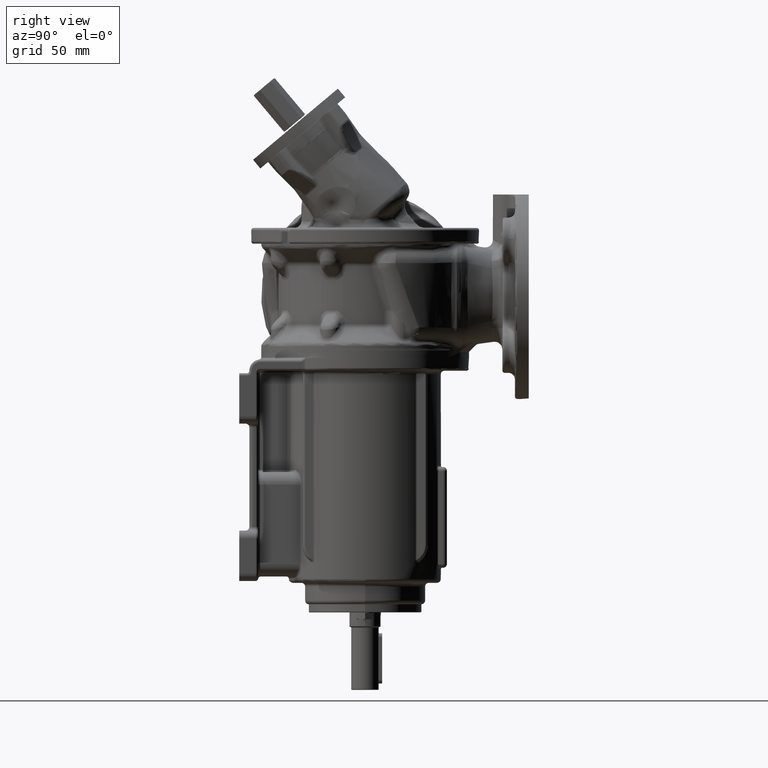
[diagram: clean part render]
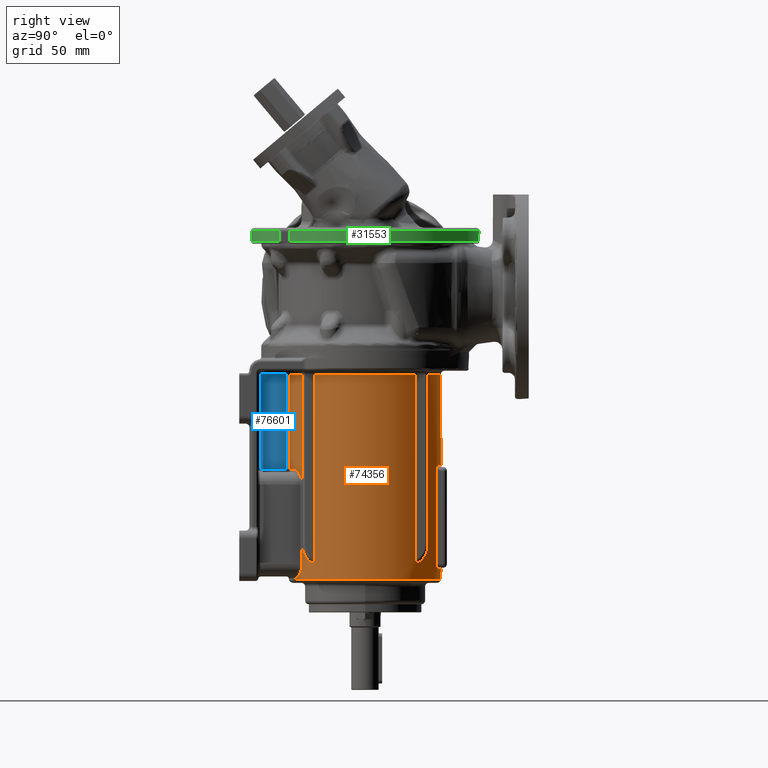
[diagram: same view with three faces highlighted in distinct colors, each labeled with its STEP entity id]
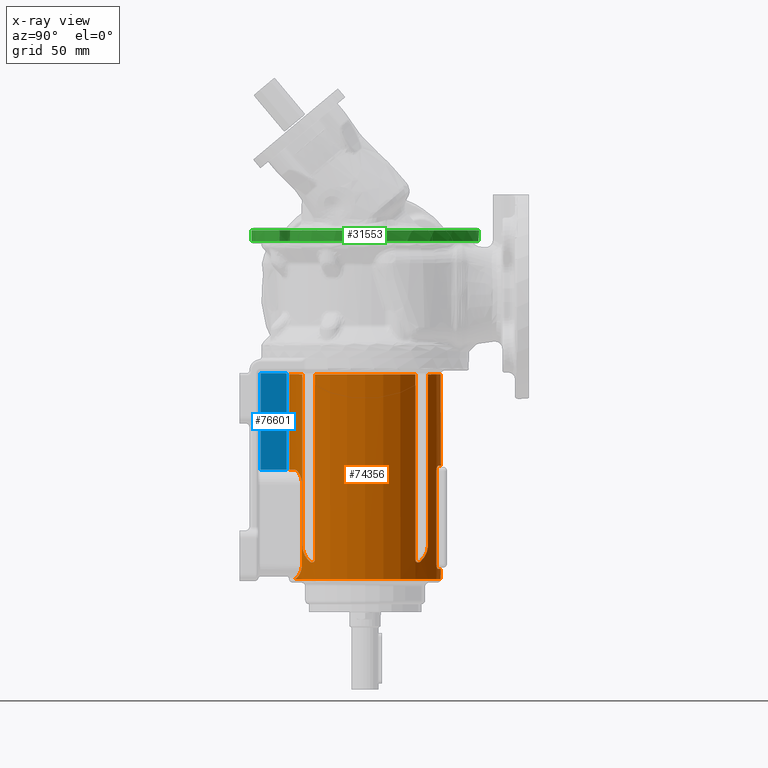
[diagram: x-ray of the same camera — body ghosted, the three highlighted faces saturated]
A machine part, right view with three faces highlighted in distinct colors.
The next image is the same camera in x-ray (body ghosted, the three faces saturated) — at least one of them is partly hidden behind the body in this view.
Their STEP definitions:

[orange] entity #74356 — the highlighted cylindrical surface (partial cylindrical patch) has radius 60.5 mm, axis along (0, 0, 1).
#18372=CARTESIAN_POINT('',(3.427868282184E1,-4.9852E1,-1.299999999441E1));
#18374=CARTESIAN_POINT('',(0.E0,0.E0,-1.3E1));
#18375=DIRECTION('',(0.E0,0.E0,-1.E0));
#18376=DIRECTION('',(5.665897987080E-1,-8.24E-1,0.E0));
#18377=AXIS2_PLACEMENT_3D('',#18374,#18375,#18376);
#18466=CARTESIAN_POINT('',(4.5496E1,-3.987936789870E1,-1.299999999308E1));
#18533=CARTESIAN_POINT('',(0.E0,0.E0,-1.3E1));
#18534=DIRECTION('',(0.E0,0.E0,-1.E0));
#18535=DIRECTION('',(7.52E-1,6.591631057637E-1,0.E0));
#18536=AXIS2_PLACEMENT_3D('',#18533,#18534,#18535);
#18625=CARTESIAN_POINT('',(3.427868282184E1,4.9852E1,-1.299999999326E1));
#18689=CARTESIAN_POINT('',(-3.427868282184E1,4.9852E1,-1.299999999441E1));
#18691=CARTESIAN_POINT('',(0.E0,0.E0,-1.3E1));
#18692=DIRECTION('',(0.E0,0.E0,-1.E0));
#18693=DIRECTION('',(-5.665897987080E-1,8.24E-1,0.E0));
#18694=AXIS2_PLACEMENT_3D('',#18691,#18692,#18693);
#18812=CARTESIAN_POINT('',(-4.5496E1,-3.987936789870E1,-1.299999999424E1));
#18814=CARTESIAN_POINT('',(0.E0,0.E0,-1.3E1));
#18815=DIRECTION('',(0.E0,0.E0,-1.E0));
#18816=DIRECTION('',(-7.52E-1,-6.591631057637E-1,0.E0));
#18817=AXIS2_PLACEMENT_3D('',#18814,#18815,#18816);
#18908=DIRECTION('',(-2.163996911087E-7,-1.896259167386E-7,1.E0));
#18909=VECTOR('',#18908,1.466418532104E2);
#18910=CARTESIAN_POINT('',(-4.549596826675E1,-3.987934009161E1,
-1.596418532046E2));
#18911=LINE('',#18910,#18909);
#18962=CARTESIAN_POINT('',(-4.549596826675E1,-3.987934009161E1,
-1.596418532046E2));
#18963=CARTESIAN_POINT('',(-4.549600003600E1,-3.987928219296E1,
-1.597113380164E2));
#18964=CARTESIAN_POINT('',(-4.549381156651E1,-3.988190461758E1,
-1.598462653171E2));
#18965=CARTESIAN_POINT('',(-4.548261520022E1,-3.989462396014E1,
-1.600358697402E2));
#18966=CARTESIAN_POINT('',(-4.546508229438E1,-3.991461935863E1,
-1.602146673313E2));
#18967=CARTESIAN_POINT('',(-4.544168127532E1,-3.994125763559E1,
-1.603837888715E2));
#18968=CARTESIAN_POINT('',(-4.541281181260E1,-3.997408284020E1,
-1.605444179410E2));
#18969=CARTESIAN_POINT('',(-4.537836977646E1,-4.001318044477E1,
-1.606980502244E2));
#18970=CARTESIAN_POINT('',(-4.533816914688E1,-4.005872969157E1,
-1.608446602199E2));
#18971=CARTESIAN_POINT('',(-4.529254496448E1,-4.011031183538E1,
-1.609839866809E2));
#18972=CARTESIAN_POINT('',(-4.524229025143E1,-4.016699216673E1,
-1.611162957849E2));
#18973=CARTESIAN_POINT('',(-4.518732199036E1,-4.022882565694E1,
-1.612424708144E2));
#18974=CARTESIAN_POINT('',(-4.512720856409E1,-4.029625325108E1,
-1.613630656580E2));
#18975=CARTESIAN_POINT('',(-4.506122434073E1,-4.037003354162E1,
-1.614779405995E2));
#18976=CARTESIAN_POINT('',(-4.498949902850E1,-4.044995831280E1,
-1.615874709459E2));
#18977=CARTESIAN_POINT('',(-4.491191105444E1,-4.053609572601E1,
-1.616918929141E2));
#18978=CARTESIAN_POINT('',(-4.482847879352E1,-4.062835208852E1,
-1.617908412027E2));
#18979=CARTESIAN_POINT('',(-4.473933987740E1,-4.072649847473E1,
-1.618834039821E2));
#18980=CARTESIAN_POINT('',(-4.464457804459E1,-4.083036418853E1,
-1.619688133670E2));
#18981=CARTESIAN_POINT('',(-4.454363700886E1,-4.094047270326E1,
-1.620473061554E2));
#18982=CARTESIAN_POINT('',(-4.443592066697E1,-4.105737351082E1,
-1.621188436883E2));
#18983=CARTESIAN_POINT('',(-4.432097256752E1,-4.118144588714E1,
-1.621831158700E2));
#18984=CARTESIAN_POINT('',(-4.419902769076E1,-4.131231287652E1,
-1.622394359799E2));
#18985=CARTESIAN_POINT('',(-4.407006828185E1,-4.144986783869E1,
-1.622867722110E2));
#18986=CARTESIAN_POINT('',(-4.393401032478E1,-4.159406791222E1,
-1.623242340472E2));
#18987=CARTESIAN_POINT('',(-4.379076890887E1,-4.174486373681E1,
-1.623510930434E2));
#18988=CARTESIAN_POINT('',(-4.364044176566E1,-4.190200793043E1,
-1.623669177274E2));
#18989=CARTESIAN_POINT('',(-4.348344026979E1,-4.206492719089E1,
-1.623708103543E2));
#18990=CARTESIAN_POINT('',(-4.332035232272E1,-4.223287731297E1,
-1.623617149714E2));
#18991=CARTESIAN_POINT('',(-4.315139564367E1,-4.240550806216E1,
-1.623389370513E2));
#18992=CARTESIAN_POINT('',(-4.297635243349E1,-4.258291312762E1,
-1.623019815159E2));
#18993=CARTESIAN_POINT('',(-4.279518962455E1,-4.276498946411E1,
-1.622499273568E2));
#18994=CARTESIAN_POINT('',(-4.260884976616E1,-4.295066250210E1,
-1.621818406853E2));
#18995=CARTESIAN_POINT('',(-4.241852856012E1,-4.313864459843E1,
-1.620973855730E2));
#18996=CARTESIAN_POINT('',(-4.222448451805E1,-4.332860280599E1,
-1.619961474653E2));
#18997=CARTESIAN_POINT('',(-4.202714138557E1,-4.352005101074E1,
-1.618775799078E2));
#18998=CARTESIAN_POINT('',(-4.182562087284E1,-4.371377867978E1,
-1.617395206930E2));
#18999=CARTESIAN_POINT('',(-4.169185780813E1,-4.384113605963E1,
-1.616370196911E2));
#19000=CARTESIAN_POINT('',(-4.162281970866E1,-4.390659021914E1,
-1.615808854211E2));
#19002=CARTESIAN_POINT('',(-4.162281970866E1,-4.390659021914E1,
-1.615808854211E2));
#19003=CARTESIAN_POINT('',(-4.143494182917E1,-4.408469463403E1,
-1.614281665477E2));
#19004=CARTESIAN_POINT('',(-4.105991029438E1,-4.443563379417E1,
-1.611136709313E2));
#19005=CARTESIAN_POINT('',(-4.051292628113E1,-4.493471172367E1,
-1.606274579182E2));
#19006=CARTESIAN_POINT('',(-3.998076119012E1,-4.540870950407E1,
-1.601259042402E2));
#19007=CARTESIAN_POINT('',(-3.946730819866E1,-4.585551630533E1,
-1.596124720675E2));
#19008=CARTESIAN_POINT('',(-3.897493580695E1,-4.627457351263E1,
-1.590898605885E2));
#19009=CARTESIAN_POINT('',(-3.850590950296E1,-4.666542195004E1,
-1.585614986250E2));
#19010=CARTESIAN_POINT('',(-3.806257219603E1,-4.702756992673E1,-1.580306581E2));
#19011=CARTESIAN_POINT('',(-3.764685534554E1,-4.736087004419E1,
-1.575004590851E2));
#19012=CARTESIAN_POINT('',(-3.725868384178E1,-4.766671483871E1,
-1.569723711821E2));
#19013=CARTESIAN_POINT('',(-3.689776736494E1,-4.794651881505E1,
-1.564480429795E2));
#19014=CARTESIAN_POINT('',(-3.656416418188E1,-4.820130277071E1,
-1.559286853994E2));
#19015=CARTESIAN_POINT('',(-3.625756377157E1,-4.843225925357E1,
-1.554153545952E2));
#19016=CARTESIAN_POINT('',(-3.597724136957E1,-4.864077455252E1,
-1.549089514394E2));
#19017=CARTESIAN_POINT('',(-3.572219565096E1,-4.882831954134E1,
-1.544102586042E2));
#19018=CARTESIAN_POINT('',(-3.549179304689E1,-4.899598787315E1,
-1.539199330240E2));
#19019=CARTESIAN_POINT('',(-3.528481105089E1,-4.914520739853E1,
-1.534375365554E2));
#19020=CARTESIAN_POINT('',(-3.509996875295E1,-4.927735173639E1,
-1.529623608720E2));
#19021=CARTESIAN_POINT('',(-3.493605263028E1,-4.939366390630E1,
-1.524936247951E2));
#19022=CARTESIAN_POINT('',(-3.479189717484E1,-4.949528122244E1,
-1.520304042557E2));
#19023=CARTESIAN_POINT('',(-3.466702945002E1,-4.958279575469E1,
-1.515735145285E2));
#19024=CARTESIAN_POINT('',(-3.456106648891E1,-4.965669438568E1,
-1.511243469018E2));
#19025=CARTESIAN_POINT('',(-3.447294147560E1,-4.971789823412E1,
-1.506814267031E2));
#19026=CARTESIAN_POINT('',(-3.440171290214E1,-4.976719888478E1,
-1.502413548060E2));
#19027=CARTESIAN_POINT('',(-3.434665323118E1,-4.980520541631E1,
-1.498025820975E2));
#19028=CARTESIAN_POINT('',(-3.430745657223E1,-4.983220714099E1,
-1.493658658206E2));
#19029=CARTESIAN_POINT('',(-3.428393466393E1,-4.984839003825E1,
-1.489314022489E2));
#19030=CARTESIAN_POINT('',(-3.427868194432E1,-4.985199921209E1,
-1.486435215652E2));
#19031=CARTESIAN_POINT('',(-3.427868282189E1,-4.985199999996E1,
-1.484999999947E2));
#19033=DIRECTION('',(4.065562974384E-13,-2.842695328794E-13,1.E0));
#19034=VECTOR('',#19033,1.355000000014E2);
#19035=CARTESIAN_POINT('',(-3.427868282189E1,-4.985199999996E1,
-1.484999999947E2));
#19036=LINE('',#19035,#19034);
#19037=DIRECTION('',(3.514598471860E-12,-3.103801247876E-13,-1.E0));
#19038=VECTOR('',#19037,7.550000001257E1);
#19039=CARTESIAN_POINT('',(-5.324000000001E0,-6.026528871581E1,
-1.299999999986E1));
#19040=LINE('',#19039,#19038);
#19041=CARTESIAN_POINT('',(0.E0,0.E0,-8.85E1));
#19042=DIRECTION('',(0.E0,0.E0,-1.E0));
#19043=DIRECTION('',(-8.8E-2,-9.961204746415E-1,0.E0));
#19044=AXIS2_PLACEMENT_3D('',#19041,#19042,#19043);
#19046=CARTESIAN_POINT('',(-2.226399999968E1,-5.625446030329E1,-8.85E1));
#19047=CARTESIAN_POINT('',(-2.242715239738E1,-5.618988829589E1,
-8.850000767868E1));
#19048=CARTESIAN_POINT('',(-2.275409742356E1,-5.605885278170E1,
-8.850714208947E1));
#19049=CARTESIAN_POINT('',(-2.324693550426E1,-5.585629055732E1,
-8.853950603546E1));
#19050=CARTESIAN_POINT('',(-2.374037535618E1,-5.564836443838E1,
-8.859375351067E1));
#19051=CARTESIAN_POINT('',(-2.423320204347E1,-5.543553062019E1,
-8.867002629290E1));
#19052=CARTESIAN_POINT('',(-2.472403267663E1,-5.521836672031E1,
-8.876838897780E1));
#19053=CARTESIAN_POINT('',(-2.521152066902E1,-5.499749384296E1,
-8.888882847677E1));
#19054=CARTESIAN_POINT('',(-2.569499577304E1,-5.477327278377E1,
-8.903137771742E1));
#19055=CARTESIAN_POINT('',(-2.617390704622E1,-5.454603213968E1,
-8.919612117252E1));
#19056=CARTESIAN_POINT('',(-2.664711077143E1,-5.431641348399E1,
-8.938293253961E1));
#19057=CARTESIAN_POINT('',(-2.711304560140E1,-5.408531888010E1,
-8.959137487411E1));
#19058=CARTESIAN_POINT('',(-2.757033006756E1,-5.385362616578E1,
-8.982092942587E1));
#19059=CARTESIAN_POINT('',(-2.801771166109E1,-5.362220388035E1,
-9.007108481220E1));
#19060=CARTESIAN_POINT('',(-2.845401671101E1,-5.339193003601E1,
-9.034122246452E1));
#19061=CARTESIAN_POINT('',(-2.887796638423E1,-5.316378698399E1,
-9.063050464907E1));
#19062=CARTESIAN_POINT('',(-2.928834770400E1,-5.293877093637E1,
-9.093790740353E1));
#19063=CARTESIAN_POINT('',(-2.968407633027E1,-5.271785009982E1,
-9.126238175548E1));
#19064=CARTESIAN_POINT('',(-3.006418206592E1,-5.250196377131E1,
-9.160286912803E1));
#19065=CARTESIAN_POINT('',(-3.042782591282E1,-5.229200404588E1,
-9.195821611008E1));
#19066=CARTESIAN_POINT('',(-3.077436448875E1,-5.208876843281E1,
-9.232727311195E1));
#19067=CARTESIAN_POINT('',(-3.110327648276E1,-5.189299117864E1,
-9.270883050345E1));
#19068=CARTESIAN_POINT('',(-3.141384799905E1,-5.170552700994E1,
-9.310142658504E1));
#19069=CARTESIAN_POINT('',(-3.170544359466E1,-5.152719071044E1,
-9.350343248571E1));
#19070=CARTESIAN_POINT('',(-3.197795509963E1,-5.135846920588E1,
-9.391371430655E1));
#19071=CARTESIAN_POINT('',(-3.223144516466E1,-5.119972295448E1,
-9.433130923686E1));
#19072=CARTESIAN_POINT('',(-3.246597427204E1,-5.105128996571E1,
-9.475518592665E1));
#19073=CARTESIAN_POINT('',(-3.268163077320E1,-5.091346592925E1,
-9.518435058252E1));
#19074=CARTESIAN_POINT('',(-3.287855515677E1,-5.078648673170E1,
-9.561789589449E1));
#19075=CARTESIAN_POINT('',(-3.305689622765E1,-5.067055539985E1,
-9.605496645633E1));
#19076=CARTESIAN_POINT('',(-3.321697898067E1,-5.056573124945E1,
-9.649486380832E1));
#19077=CARTESIAN_POINT('',(-3.335918231718E1,-5.047200661448E1,
-9.693708726029E1));
#19078=CARTESIAN_POINT('',(-3.348379551893E1,-5.038940233656E1,
-9.738121978303E1));
#19079=CARTESIAN_POINT('',(-3.359102603776E1,-5.031796532864E1,
-9.782700545872E1));
#19080=CARTESIAN_POINT('',(-3.368114574881E1,-5.025767224492E1,
-9.827379306391E1));
#19081=CARTESIAN_POINT('',(-3.375439760215E1,-5.020849188203E1,
-9.872088933337E1));
#19082=CARTESIAN_POINT('',(-3.381092187325E1,-5.017043617463E1,
-9.916771908570E1));
#19083=CARTESIAN_POINT('',(-3.385090437983E1,-5.014346164768E1,
-9.961367411689E1));
#19084=CARTESIAN_POINT('',(-3.387473032208E1,-5.012736516241E1,
-1.000581408590E2));
#19085=CARTESIAN_POINT('',(-3.387999770741E1,-5.012380446932E1,
-1.003529370737E2));
#19086=CARTESIAN_POINT('',(-3.387999999997E1,-5.012380272887E1,
-1.005000000046E2));
#19088=DIRECTION('',(2.522990635126E-13,-1.712069639750E-13,-1.E0));
#19089=VECTOR('',#19088,6.299999999072E1);
#19090=CARTESIAN_POINT('',(-3.387999999997E1,-5.012380272887E1,
-1.005000000046E2));
#19091=LINE('',#19090,#19089);
#19092=CARTESIAN_POINT('',(-3.387999999995E1,-5.012380272888E1,
-1.634999999953E2));
#19093=CARTESIAN_POINT('',(-3.387999550886E1,-5.012380523609E1,
-1.636496968049E2));
#19094=CARTESIAN_POINT('',(-3.387448398262E1,-5.012753204720E1,
-1.639490881775E2));
#19095=CARTESIAN_POINT('',(-3.384991140769E1,-5.014413214525E1,
-1.643983291555E2));
#19096=CARTESIAN_POINT('',(-3.380909152978E1,-5.017167001508E1,
-1.648472420890E2));
#19097=CARTESIAN_POINT('',(-3.375194200251E1,-5.021014297858E1,
-1.652955141317E2));
#19098=CARTESIAN_POINT('',(-3.367821073008E1,-5.025963946079E1,
-1.657426505732E2));
#19099=CARTESIAN_POINT('',(-3.358759828474E1,-5.032025388040E1,
-1.661884383574E2));
#19100=CARTESIAN_POINT('',(-3.347989825368E1,-5.039199242802E1,
-1.666333966885E2));
#19101=CARTESIAN_POINT('',(-3.335465978593E1,-5.047499635755E1,
-1.670778256923E2));
#19102=CARTESIAN_POINT('',(-3.321169974252E1,-5.056919989785E1,
-1.675206724938E2));
#19103=CARTESIAN_POINT('',(-3.305090992653E1,-5.067446127739E1,
-1.679605897439E2));
#19104=CARTESIAN_POINT('',(-3.287200712650E1,-5.079072612860E1,
-1.683971521459E2));
#19105=CARTESIAN_POINT('',(-3.267450841323E1,-5.091803839855E1,
-1.688304034611E2));
#19106=CARTESIAN_POINT('',(-3.245804000318E1,-5.105633660359E1,
-1.692597774507E2));
#19107=CARTESIAN_POINT('',(-3.222275223675E1,-5.120519561201E1,
-1.696836817924E2));
#19108=CARTESIAN_POINT('',(-3.196885009086E1,-5.136413779772E1,
-1.701006359590E2));
#19109=CARTESIAN_POINT('',(-3.169615099046E1,-5.153290777467E1,
-1.705099587606E2));
#19110=CARTESIAN_POINT('',(-3.140439733953E1,-5.171126781831E1,
-1.709110351910E2));
#19111=CARTESIAN_POINT('',(-3.109378249116E1,-5.189868030208E1,
-1.713026348888E2));
#19112=CARTESIAN_POINT('',(-3.076490912808E1,-5.209435335626E1,
-1.716832134956E2));
#19113=CARTESIAN_POINT('',(-3.041838763936E1,-5.229749471662E1,
-1.720513938365E2));
#19114=CARTESIAN_POINT('',(-3.005479058350E1,-5.250734007951E1,
-1.724058928620E2));
#19115=CARTESIAN_POINT('',(-2.967484103699E1,-5.272304839038E1,
-1.727455034554E2));
#19116=CARTESIAN_POINT('',(-2.927935992376E1,-5.294374139341E1,
-1.730691092091E2));
#19117=CARTESIAN_POINT('',(-2.886926872338E1,-5.316850936338E1,
-1.733757028812E2));
#19118=CARTESIAN_POINT('',(-2.844565884727E1,-5.339638188927E1,
-1.736641993559E2));
#19119=CARTESIAN_POINT('',(-2.800977914393E1,-5.362634616832E1,
-1.739335690336E2));
#19120=CARTESIAN_POINT('',(-2.756287753380E1,-5.385743895569E1,
-1.741830034726E2));
#19121=CARTESIAN_POINT('',(-2.710611536501E1,-5.408879040439E1,
-1.744118993336E2));
#19122=CARTESIAN_POINT('',(-2.664075976389E1,-5.431952648731E1,
-1.746197356517E2));
#19123=CARTESIAN_POINT('',(-2.616821284503E1,-5.454876148686E1,
-1.748059736509E2));
#19124=CARTESIAN_POINT('',(-2.569004862524E1,-5.477559059963E1,
-1.749701908818E2));
#19125=CARTESIAN_POINT('',(-2.520726609865E1,-5.499944156640E1,
-1.751123100481E2));
#19126=CARTESIAN_POINT('',(-2.472043536176E1,-5.521997489367E1,
-1.752323970343E2));
#19127=CARTESIAN_POINT('',(-2.423028257202E1,-5.543680422312E1,
-1.753304721569E2));
#19128=CARTESIAN_POINT('',(-2.373817559899E1,-5.564930034020E1,
-1.754065200317E2));
#19129=CARTESIAN_POINT('',(-2.324545844487E1,-5.585690250883E1,
-1.754606076642E2));
#19130=CARTESIAN_POINT('',(-2.275340154379E1,-5.605913311386E1,
-1.754928770182E2));
#19131=CARTESIAN_POINT('',(-2.242684145505E1,-5.619001120145E1,
-1.754999916056E2));
#19132=CARTESIAN_POINT('',(-2.226393104576E1,-5.625448759320E1,
-1.755000000019E2));
#19134=CARTESIAN_POINT('',(0.E0,0.E0,-1.755E2));
#19135=DIRECTION('',(0.E0,0.E0,-1.E0));
#19136=DIRECTION('',(-3.679999988767E-1,-9.298257905795E-1,0.E0));
#19137=AXIS2_PLACEMENT_3D('',#19134,#19135,#19136);
#19139=CARTESIAN_POINT('',(0.E0,0.E0,-1.755E2));
#19140=DIRECTION('',(0.E0,0.E0,-1.E0));
#19141=DIRECTION('',(-1.E0,0.E0,0.E0));
#19142=AXIS2_PLACEMENT_3D('',#19139,#19140,#19141);
#19144=CARTESIAN_POINT('',(0.E0,0.E0,-1.755E2));
#19145=DIRECTION('',(0.E0,0.E0,-1.E0));
#19146=DIRECTION('',(1.E0,0.E0,0.E0));
#19147=AXIS2_PLACEMENT_3D('',#19144,#19145,#19146);
#19149=CARTESIAN_POINT('',(2.226392916157E1,-5.625448833890E1,
-1.755000000016E2));
#19150=CARTESIAN_POINT('',(2.242708158049E1,-5.618991632320E1,
-1.754999923229E2));
#19151=CARTESIAN_POINT('',(2.275413027036E1,-5.605883978207E1,
-1.754928579106E2));
#19152=CARTESIAN_POINT('',(2.324692670629E1,-5.585629403922E1,
-1.754604939644E2));
#19153=CARTESIAN_POINT('',(2.374037773231E1,-5.564836349748E1,
-1.754062464872E2));
#19154=CARTESIAN_POINT('',(2.423320143603E1,-5.543553085960E1,
-1.753299737028E2));
#19155=CARTESIAN_POINT('',(2.472403287403E1,-5.521836664073E1,
-1.752316110160E2));
#19156=CARTESIAN_POINT('',(2.521152065079E1,-5.499749384846E1,
-1.751111715158E2));
#19157=CARTESIAN_POINT('',(2.569499580966E1,-5.477327276748E1,
-1.749686222747E2));
#19158=CARTESIAN_POINT('',(2.617390706580E1,-5.454603213001E1,
-1.748038788190E2));
#19159=CARTESIAN_POINT('',(2.664711079492E1,-5.431641347254E1,
-1.746170674509E2));
#19160=CARTESIAN_POINT('',(2.711304562343E1,-5.408531886903E1,
-1.744086251153E2));
#19161=CARTESIAN_POINT('',(2.757033008863E1,-5.385362615499E1,
-1.741790705630E2));
#19162=CARTESIAN_POINT('',(2.801771168055E1,-5.362220387017E1,
-1.739289151763E2));
#19163=CARTESIAN_POINT('',(2.845401672919E1,-5.339193002632E1,
-1.736587775236E2));
#19164=CARTESIAN_POINT('',(2.887796640124E1,-5.316378697474E1,
-1.733694953387E2));
#19165=CARTESIAN_POINT('',(2.928834771981E1,-5.293877092762E1,
-1.730620925841E2));
#19166=CARTESIAN_POINT('',(2.968407634481E1,-5.271785009163E1,
-1.727376182320E2));
#19167=CARTESIAN_POINT('',(3.006418207920E1,-5.250196376370E1,
-1.723971308595E2));
#19168=CARTESIAN_POINT('',(3.042782592490E1,-5.229200403885E1,
-1.720417838776E2));
#19169=CARTESIAN_POINT('',(3.077436449967E1,-5.208876842636E1,
-1.716727268759E2));
#19170=CARTESIAN_POINT('',(3.110327649256E1,-5.189299117276E1,
-1.712911694847E2));
#19171=CARTESIAN_POINT('',(3.141384800776E1,-5.170552700465E1,
-1.708985734034E2));
#19172=CARTESIAN_POINT('',(3.170544360233E1,-5.152719070571E1,
-1.704965675032E2));
#19173=CARTESIAN_POINT('',(3.197795510634E1,-5.135846920171E1,
-1.700862856829E2));
#19174=CARTESIAN_POINT('',(3.223144517046E1,-5.119972295082E1,
-1.696686907531E2));
#19175=CARTESIAN_POINT('',(3.246597427701E1,-5.105128996255E1,
-1.692448140639E2));
#19176=CARTESIAN_POINT('',(3.268163077740E1,-5.091346592655E1,
-1.688156494087E2));
#19177=CARTESIAN_POINT('',(3.287855516027E1,-5.078648672943E1,
-1.683821040974E2));
#19178=CARTESIAN_POINT('',(3.305689623052E1,-5.067055539798E1,
-1.679450335362E2));
#19179=CARTESIAN_POINT('',(3.321697898298E1,-5.056573124794E1,
-1.675051361849E2));
#19180=CARTESIAN_POINT('',(3.335918231899E1,-5.047200661328E1,
-1.670629127337E2));
#19181=CARTESIAN_POINT('',(3.348379552030E1,-5.038940233565E1,
-1.666187802117E2));
#19182=CARTESIAN_POINT('',(3.359102603876E1,-5.031796532797E1,
-1.661729945367E2));
#19183=CARTESIAN_POINT('',(3.368114574949E1,-5.025767224446E1,
-1.657262069323E2));
#19184=CARTESIAN_POINT('',(3.375439760258E1,-5.020849188174E1,
-1.652791106636E2));
#19185=CARTESIAN_POINT('',(3.381092187349E1,-5.017043617447E1,
-1.648322809120E2));
#19186=CARTESIAN_POINT('',(3.385090437993E1,-5.014346164762E1,
-1.643863258816E2));
#19187=CARTESIAN_POINT('',(3.387473032210E1,-5.012736516240E1,
-1.639418591403E2));
#19188=CARTESIAN_POINT('',(3.387999770741E1,-5.012380446932E1,
-1.636470629261E2));
#19189=CARTESIAN_POINT('',(3.387999999997E1,-5.012380272887E1,
-1.634999999954E2));
#19191=DIRECTION('',(-2.521862789514E-13,-1.710941794138E-13,1.E0));
#19192=VECTOR('',#19191,6.299999999072E1);
#19193=CARTESIAN_POINT('',(3.387999999997E1,-5.012380272887E1,
-1.634999999954E2));
#19194=LINE('',#19193,#19192);
#19195=CARTESIAN_POINT('',(3.387999999995E1,-5.012380272888E1,
-1.005000000047E2));
#19196=CARTESIAN_POINT('',(3.387999550886E1,-5.012380523609E1,
-1.003503031948E2));
#19197=CARTESIAN_POINT('',(3.387448398260E1,-5.012753204722E1,
-1.000509118216E2));
#19198=CARTESIAN_POINT('',(3.384991140757E1,-5.014413214533E1,
-9.960167084267E1));
#19199=CARTESIAN_POINT('',(3.380909152949E1,-5.017167001527E1,
-9.915275790828E1));
#19200=CARTESIAN_POINT('',(3.375194200200E1,-5.021014297893E1,
-9.870448586471E1));
#19201=CARTESIAN_POINT('',(3.367821072927E1,-5.025963946134E1,
-9.825734942229E1));
#19202=CARTESIAN_POINT('',(3.358759828356E1,-5.032025388119E1,
-9.781156163723E1));
#19203=CARTESIAN_POINT('',(3.347989825205E1,-5.039199242910E1,
-9.736660330525E1));
#19204=CARTESIAN_POINT('',(3.335465978378E1,-5.047499635897E1,
-9.692217430057E1));
#19205=CARTESIAN_POINT('',(3.321169973978E1,-5.056919989966E1,
-9.647932749820E1));
#19206=CARTESIAN_POINT('',(3.305090992311E1,-5.067446127961E1,
-9.603941024726E1));
#19207=CARTESIAN_POINT('',(3.287200712234E1,-5.079072613129E1,
-9.560284784441E1));
#19208=CARTESIAN_POINT('',(3.267450840824E1,-5.091803840175E1,
-9.516959652843E1));
#19209=CARTESIAN_POINT('',(3.245803999727E1,-5.105633660735E1,
-9.474022253813E1));
#19210=CARTESIAN_POINT('',(3.222275222985E1,-5.120519561635E1,
-9.431631819574E1));
#19211=CARTESIAN_POINT('',(3.196885008291E1,-5.136413780267E1,
-9.389936402851E1));
#19212=CARTESIAN_POINT('',(3.169615098137E1,-5.153290778026E1,
-9.349004122635E1));
#19213=CARTESIAN_POINT('',(3.140439732921E1,-5.171126782458E1,
-9.308896479541E1));
#19214=CARTESIAN_POINT('',(3.109378247956E1,-5.189868030903E1,
-9.269736509718E1));
#19215=CARTESIAN_POINT('',(3.076490911515E1,-5.209435336390E1,
-9.231678649001E1));
#19216=CARTESIAN_POINT('',(3.041838762506E1,-5.229749472495E1,
-9.194860614890E1));
#19217=CARTESIAN_POINT('',(3.005479056776E1,-5.250734008852E1,
-9.159410712324E1));
#19218=CARTESIAN_POINT('',(2.967484101976E1,-5.272304840008E1,
-9.125449652983E1));
#19219=CARTESIAN_POINT('',(2.927935990504E1,-5.294374140377E1,
-9.093089077622E1));
#19220=CARTESIAN_POINT('',(2.886926870326E1,-5.316850937431E1,
-9.062429710444E1));
#19221=CARTESIAN_POINT('',(2.844565882576E1,-5.339638190073E1,
-9.033580063008E1));
#19222=CARTESIAN_POINT('',(2.800977912083E1,-5.362634618039E1,
-9.006643095283E1));
#19223=CARTESIAN_POINT('',(2.756287750883E1,-5.385743896846E1,
-8.981699651417E1));
#19224=CARTESIAN_POINT('',(2.710611533903E1,-5.408879041744E1,
-8.958810065401E1));
#19225=CARTESIAN_POINT('',(2.664075973653E1,-5.431952650065E1,
-8.938026433717E1));
#19226=CARTESIAN_POINT('',(2.616821282125E1,-5.454876149854E1,
-8.919402633919E1));
#19227=CARTESIAN_POINT('',(2.569004858418E1,-5.477559061803E1,
-8.902980910886E1));
#19228=CARTESIAN_POINT('',(2.520726611054E1,-5.499944156372E1,
-8.888768994310E1));
#19229=CARTESIAN_POINT('',(2.472043516399E1,-5.521997497364E1,
-8.876760295836E1));
#19230=CARTESIAN_POINT('',(2.423028315860E1,-5.543680399212E1,
-8.866952783813E1));
#19231=CARTESIAN_POINT('',(2.373817328341E1,-5.564930125720E1,
-8.859347996582E1));
#19232=CARTESIAN_POINT('',(2.324546700709E1,-5.585689912023E1,
-8.853939233569E1));
#19233=CARTESIAN_POINT('',(2.275336957719E1,-5.605914576511E1,
-8.850712298197E1));
#19234=CARTESIAN_POINT('',(2.242691038408E1,-5.618998392128E1,
-8.850000839636E1));
#19235=CARTESIAN_POINT('',(2.226399999979E1,-5.625446030325E1,-8.85E1));
#19237=CARTESIAN_POINT('',(0.E0,0.E0,-8.85E1));
#19238=DIRECTION('',(0.E0,0.E0,-1.E0));
#19239=DIRECTION('',(3.68E-1,-9.298257901349E-1,0.E0));
#19240=AXIS2_PLACEMENT_3D('',#19237,#19238,#19239);
#19242=DIRECTION('',(3.612062818920E-12,3.188501706395E-13,1.E0));
#19243=VECTOR('',#19242,7.550000001338E1);
#19244=CARTESIAN_POINT('',(5.323999999736E0,-6.026528871583E1,
-8.850000001243E1));
#19245=LINE('',#19244,#19243);
#19246=DIRECTION('',(7.750946256504E-13,5.333527797503E-13,-1.E0));
#19247=VECTOR('',#19246,1.354999999962E2);
#19248=CARTESIAN_POINT('',(3.427868282184E1,-4.9852E1,-1.299999999441E1));
#19249=LINE('',#19248,#19247);
#19250=CARTESIAN_POINT('',(3.427868282194E1,-4.985199999993E1,
-1.484999999906E2));
#19251=CARTESIAN_POINT('',(3.427867806765E1,-4.985200089860E1,
-1.486426630992E2));
#19252=CARTESIAN_POINT('',(3.428389961244E1,-4.984841459374E1,
-1.489292915959E2));
#19253=CARTESIAN_POINT('',(3.430742301134E1,-4.983223013578E1,
-1.493635012278E2));
#19254=CARTESIAN_POINT('',(3.434670651900E1,-4.980516875687E1,
-1.498008974402E2));
#19255=CARTESIAN_POINT('',(3.440190279202E1,-4.976706769752E1,
-1.502407996875E2));
#19256=CARTESIAN_POINT('',(3.447317419534E1,-4.971773680480E1,
-1.506820980267E2));
#19257=CARTESIAN_POINT('',(3.456102764570E1,-4.965672102039E1,
-1.511246250007E2));
#19258=CARTESIAN_POINT('',(3.466642193469E1,-4.958321968927E1,
-1.515715724806E2));
#19259=CARTESIAN_POINT('',(3.479055259682E1,-4.949622546740E1,
-1.520259224434E2));
#19260=CARTESIAN_POINT('',(3.493434945333E1,-4.939486845888E1,
-1.524881726664E2));
#19261=CARTESIAN_POINT('',(3.509851865137E1,-4.927838531342E1,
-1.529579328997E2));
#19262=CARTESIAN_POINT('',(3.528373195412E1,-4.914598267755E1,
-1.534346857189E2));
#19263=CARTESIAN_POINT('',(3.549063001168E1,-4.899682905905E1,
-1.539176732857E2));
#19264=CARTESIAN_POINT('',(3.571991983993E1,-4.882998051330E1,
-1.544063166114E2));
#19265=CARTESIAN_POINT('',(3.597363043724E1,-4.864344322707E1,
-1.549028544057E2));
#19266=CARTESIAN_POINT('',(3.625430617651E1,-4.843470144380E1,
-1.554097273706E2));
#19267=CARTESIAN_POINT('',(3.656240422782E1,-4.820264278843E1,
-1.559254994998E2));
#19268=CARTESIAN_POINT('',(3.689710038701E1,-4.794703521549E1,
-1.564472917038E2));
#19269=CARTESIAN_POINT('',(3.725891816088E1,-4.766653703911E1,
-1.569734752687E2));
#19270=CARTESIAN_POINT('',(3.764907465891E1,-4.735911840532E1,
-1.575038506834E2));
#19271=CARTESIAN_POINT('',(3.806802017233E1,-4.702317785014E1,
-1.580373171184E2));
#19272=CARTESIAN_POINT('',(3.851543918278E1,-4.665758563266E1,
-1.585725416456E2));
#19273=CARTESIAN_POINT('',(3.899018615362E1,-4.626175729535E1,
-1.591069646414E2));
#19274=CARTESIAN_POINT('',(3.948675209723E1,-4.583879553402E1,
-1.596328135069E2));
#19275=CARTESIAN_POINT('',(4.000082497255E1,-4.539101483222E1,
-1.601454877406E2));
#19276=CARTESIAN_POINT('',(4.052963962521E1,-4.491965180552E1,
-1.606425604857E2));
#19277=CARTESIAN_POINT('',(4.107632841148E1,-4.442035126716E1,
-1.611282662549E2));
#19278=CARTESIAN_POINT('',(4.143849862862E1,-4.408139001708E1,
-1.614298294660E2));
#19279=CARTESIAN_POINT('',(4.162886594296E1,-4.390084018257E1,
-1.615846396089E2));
#19281=CARTESIAN_POINT('',(4.162886594296E1,-4.390084018257E1,
-1.615846396089E2));
#19282=CARTESIAN_POINT('',(4.167333317572E1,-4.385867279910E1,
-1.616207761792E2));
#19283=CARTESIAN_POINT('',(4.177541526079E1,-4.376162359351E1,
-1.617015356639E2));
#19284=CARTESIAN_POINT('',(4.190585186843E1,-4.363667518982E1,
-1.617947405540E2));
#19285=CARTESIAN_POINT('',(4.203609788476E1,-4.351123315427E1,
-1.618816830424E2));
#19286=CARTESIAN_POINT('',(4.216269405559E1,-4.338856317450E1,
-1.619591803160E2));
#19287=CARTESIAN_POINT('',(4.228909021624E1,-4.326538337892E1,
-1.620301196072E2));
#19288=CARTESIAN_POINT('',(4.241715939640E1,-4.313983675121E1,
-1.620953320448E2));
#19289=CARTESIAN_POINT('',(4.254706049428E1,-4.301172905412E1,
-1.621546934012E2));
#19290=CARTESIAN_POINT('',(4.267857020894E1,-4.288124941361E1,
-1.622078143519E2));
#19291=CARTESIAN_POINT('',(4.281674945150E1,-4.274329859785E1,
-1.622559475595E2));
#19292=CARTESIAN_POINT('',(4.296664881026E1,-4.259265180332E1,
-1.622991397987E2));
#19293=CARTESIAN_POINT('',(4.313323609204E1,-4.242397919329E1,
-1.623356622233E2));
#19294=CARTESIAN_POINT('',(4.330639699348E1,-4.224720386255E1,
-1.623604077184E2));
#19295=CARTESIAN_POINT('',(4.347439881133E1,-4.207427857563E1,
-1.623707292414E2));
#19296=CARTESIAN_POINT('',(4.363196954474E1,-4.191082842627E1,
-1.623675158490E2));
#19297=CARTESIAN_POINT('',(4.378193369430E1,-4.175412985967E1,
-1.623523028170E2));
#19298=CARTESIAN_POINT('',(4.392555378384E1,-4.160299994527E1,
-1.623260693082E2));
#19299=CARTESIAN_POINT('',(4.406245583543E1,-4.145796208422E1,
-1.622891898574E2));
#19300=CARTESIAN_POINT('',(4.419233885600E1,-4.131946976417E1,
-1.622422762896E2));
#19301=CARTESIAN_POINT('',(4.431505797937E1,-4.118781189139E1,
-1.621861841210E2));
#19302=CARTESIAN_POINT('',(4.443068332864E1,-4.106304237963E1,
-1.621219690274E2));
#19303=CARTESIAN_POINT('',(4.453905716680E1,-4.094545619700E1,
-1.620505018143E2));
#19304=CARTESIAN_POINT('',(4.464058105960E1,-4.083473506931E1,
-1.619721041282E2));
#19305=CARTESIAN_POINT('',(4.473586581046E1,-4.073031533695E1,
-1.618868075477E2));
#19306=CARTESIAN_POINT('',(4.482547365243E1,-4.063166831203E1,
-1.617943475239E2));
#19307=CARTESIAN_POINT('',(4.490928533763E1,-4.053900518464E1,
-1.616952850058E2));
#19308=CARTESIAN_POINT('',(4.498716487727E1,-4.045255458213E1,
-1.615907541089E2));
#19309=CARTESIAN_POINT('',(4.505908970713E1,-4.037241634959E1,
-1.614812678911E2));
#19310=CARTESIAN_POINT('',(4.512529896349E1,-4.029839197658E1,
-1.613666228279E2));
#19311=CARTESIAN_POINT('',(4.518564945150E1,-4.023070446036E1,
-1.612462974777E2));
#19312=CARTESIAN_POINT('',(4.524074265220E1,-4.016873535557E1,
-1.611202105260E2));
#19313=CARTESIAN_POINT('',(4.529114312037E1,-4.011189489900E1,
-1.609878763860E2));
#19314=CARTESIAN_POINT('',(4.533699786715E1,-4.006005556484E1,
-1.608483116158E2));
#19315=CARTESIAN_POINT('',(4.537758322059E1,-4.001407271059E1,
-1.607013461501E2));
#19316=CARTESIAN_POINT('',(4.541228162677E1,-3.997468522191E1,
-1.605473725720E2));
#19317=CARTESIAN_POINT('',(4.544127791384E1,-3.994171671252E1,
-1.603867036924E2));
#19318=CARTESIAN_POINT('',(4.546475966712E1,-3.991498640590E1,
-1.602175843060E2));
#19319=CARTESIAN_POINT('',(4.548240005734E1,-3.989487104735E1,
-1.600385115830E2));
#19320=CARTESIAN_POINT('',(4.549369331497E1,-3.988203287666E1,
-1.598481071603E2));
#19321=CARTESIAN_POINT('',(4.549600334216E1,-3.987929274989E1,
-1.597120388656E2));
#19322=CARTESIAN_POINT('',(4.549597449945E1,-3.987934555183E1,
-1.596418532139E2));
#19324=DIRECTION('',(-1.884401481157E-7,-1.651321333076E-7,-1.E0));
#19325=VECTOR('',#19324,1.466418532135E2);
#19326=CARTESIAN_POINT('',(4.5496E1,3.987936789870E1,-1.299999999424E1));
#19327=LINE('',#19326,#19325);
#19328=CARTESIAN_POINT('',(4.549597236679E1,3.987934368342E1,
-1.596418532077E2));
#19329=CARTESIAN_POINT('',(4.549600488448E1,3.987928402365E1,
-1.597110954625E2));
#19330=CARTESIAN_POINT('',(4.549380593636E1,3.988190761590E1,
-1.598456353809E2));
#19331=CARTESIAN_POINT('',(4.548270012438E1,3.989452803357E1,
-1.600350050612E2));
#19332=CARTESIAN_POINT('',(4.546521234155E1,3.991447097245E1,
-1.602137544494E2));
#19333=CARTESIAN_POINT('',(4.544181824696E1,3.994110186832E1,
-1.603829842388E2));
#19334=CARTESIAN_POINT('',(4.541294132741E1,3.997393568993E1,
-1.605437570419E2));
#19335=CARTESIAN_POINT('',(4.537850959655E1,4.001302185667E1,
-1.606974590503E2));
#19336=CARTESIAN_POINT('',(4.533835580823E1,4.005851839570E1,
-1.608440950618E2));
#19337=CARTESIAN_POINT('',(4.529274875062E1,4.011008171830E1,
-1.609834402409E2));
#19338=CARTESIAN_POINT('',(4.524248447751E1,4.016677341706E1,
-1.611158045909E2));
#19339=CARTESIAN_POINT('',(4.518749468814E1,4.022863169229E1,
-1.612420545423E2));
#19340=CARTESIAN_POINT('',(4.512737138434E1,4.029607091276E1,
-1.613627495391E2));
#19341=CARTESIAN_POINT('',(4.506138797702E1,4.036985089180E1,
-1.614777139368E2));
#19342=CARTESIAN_POINT('',(4.498966461342E1,4.044977412316E1,
-1.615872745959E2));
#19343=CARTESIAN_POINT('',(4.491211172123E1,4.053587332465E1,
-1.616916651977E2));
#19344=CARTESIAN_POINT('',(4.482873172697E1,4.062807292936E1,
-1.617905626544E2));
#19345=CARTESIAN_POINT('',(4.473961674811E1,4.072619434624E1,
-1.618831260083E2));
#19346=CARTESIAN_POINT('',(4.464479853025E1,4.083012325688E1,
-1.619686143527E2));
#19347=CARTESIAN_POINT('',(4.454375807094E1,4.094034118250E1,
-1.620472061292E2));
#19348=CARTESIAN_POINT('',(4.443595203857E1,4.105733967539E1,
-1.621188165412E2));
#19349=CARTESIAN_POINT('',(4.432097831059E1,4.118143971244E1,
-1.621831187597E2));
#19350=CARTESIAN_POINT('',(4.419904074097E1,4.131229888263E1,
-1.622394360011E2));
#19351=CARTESIAN_POINT('',(4.407009867033E1,4.144983548929E1,
-1.622867406978E2));
#19352=CARTESIAN_POINT('',(4.393405176648E1,4.159402413925E1,
-1.623241839606E2));
#19353=CARTESIAN_POINT('',(4.379078148683E1,4.174485071385E1,
-1.623510655041E2));
#19354=CARTESIAN_POINT('',(4.364034266122E1,4.190211150598E1,
-1.623669575393E2));
#19355=CARTESIAN_POINT('',(4.348321961347E1,4.206515545511E1,
-1.623708140432E2));
#19356=CARTESIAN_POINT('',(4.332015943129E1,4.223307485408E1,
-1.623616633933E2));
#19357=CARTESIAN_POINT('',(4.315137995480E1,4.240552345108E1,
-1.623388930153E2));
#19358=CARTESIAN_POINT('',(4.297651828652E1,4.258274540026E1,
-1.623020525230E2));
#19359=CARTESIAN_POINT('',(4.279541109920E1,4.276476778979E1,
-1.622500111011E2));
#19360=CARTESIAN_POINT('',(4.260902255335E1,4.295049155922E1,
-1.621818914296E2));
#19361=CARTESIAN_POINT('',(4.241851089571E1,4.313866222628E1,
-1.620973515244E2));
#19362=CARTESIAN_POINT('',(4.222444863858E1,4.332863809473E1,
-1.619961761770E2));
#19363=CARTESIAN_POINT('',(4.202707533174E1,4.352011366917E1,
-1.618774381257E2));
#19364=CARTESIAN_POINT('',(4.182729470853E1,4.371216616775E1,
-1.617408672182E2));
#19365=CARTESIAN_POINT('',(4.169183228599E1,4.384118631913E1,
-1.616366146948E2));
#19366=CARTESIAN_POINT('',(4.162441805305E1,4.390510001769E1,
-1.615818223518E2));
#19368=CARTESIAN_POINT('',(4.162441805305E1,4.390510001769E1,
-1.615818223518E2));
#19369=CARTESIAN_POINT('',(4.143453511705E1,4.408512052217E1,
-1.614274812178E2));
#19370=CARTESIAN_POINT('',(4.106026133388E1,4.443530013047E1,
-1.611140784416E2));
#19371=CARTESIAN_POINT('',(4.050971327701E1,4.493763842614E1,
-1.606245814676E2));
#19372=CARTESIAN_POINT('',(3.997549845489E1,4.541335344323E1,
-1.601206700143E2));
#19373=CARTESIAN_POINT('',(3.945961851166E1,4.586214956403E1,
-1.596044446564E2));
#19374=CARTESIAN_POINT('',(3.896520797480E1,4.628277329634E1,
-1.590792980128E2));
#19375=CARTESIAN_POINT('',(3.849511897185E1,4.667432740283E1,
-1.585489441274E2));
#19376=CARTESIAN_POINT('',(3.805099514043E1,4.703694209215E1,
-1.580161353866E2));
#19377=CARTESIAN_POINT('',(3.763413781800E1,4.737098125305E1,
-1.574835928751E2));
#19378=CARTESIAN_POINT('',(3.724510373286E1,4.767732804887E1,
-1.569533788198E2));
#19379=CARTESIAN_POINT('',(3.688421513314E1,4.795694320950E1,
-1.564275741254E2));
#19380=CARTESIAN_POINT('',(3.655122256814E1,4.821111416902E1,
-1.559074493357E2));
#19381=CARTESIAN_POINT('',(3.624557455086E1,4.844122866066E1,
-1.553943901935E2));
#19382=CARTESIAN_POINT('',(3.596654367312E1,4.864868102310E1,
-1.548889427163E2));
#19383=CARTESIAN_POINT('',(3.571297928445E1,4.883505737970E1,
-1.543912877417E2));
#19384=CARTESIAN_POINT('',(3.548364658710E1,4.900188584046E1,
-1.539014950360E2));
#19385=CARTESIAN_POINT('',(3.527758104652E1,4.915039562326E1,
-1.534195451219E2));
#19386=CARTESIAN_POINT('',(3.509369030345E1,4.928182147917E1,
-1.529451909148E2));
#19387=CARTESIAN_POINT('',(3.493080769532E1,4.939737144014E1,
-1.524778376011E2));
#19388=CARTESIAN_POINT('',(3.478790552375E1,4.949808500992E1,
-1.520170652344E2));
#19389=CARTESIAN_POINT('',(3.466439013072E1,4.958463955549E1,
-1.515635725006E2));
#19390=CARTESIAN_POINT('',(3.455948039676E1,4.965779748101E1,
-1.511173947064E2));
#19391=CARTESIAN_POINT('',(3.447197963398E1,4.971856478599E1,
-1.506758105961E2));
#19392=CARTESIAN_POINT('',(3.440110489341E1,4.976761897812E1,
-1.502358884290E2));
#19393=CARTESIAN_POINT('',(3.434632094356E1,4.980543447713E1,
-1.497979501494E2));
#19394=CARTESIAN_POINT('',(3.430731300849E1,4.983230586459E1,
-1.493624077051E2));
#19395=CARTESIAN_POINT('',(3.428390341153E1,4.984841178723E1,
-1.489294986294E2));
#19396=CARTESIAN_POINT('',(3.427867814269E1,4.985200125518E1,
-1.486428510611E2));
#19397=CARTESIAN_POINT('',(3.427868282190E1,4.985199999996E1,
-1.484999999944E2));
#19399=DIRECTION('',(-4.822776044821E-13,3.358690939119E-13,1.E0));
#19400=VECTOR('',#19399,1.355000000011E2);
#19401=CARTESIAN_POINT('',(3.427868282190E1,4.985199999996E1,
-1.484999999944E2));
#19402=LINE('',#19401,#19400);
#19403=DIRECTION('',(-5.890425498811E-13,-4.063989817127E-13,-1.E0));
#19404=VECTOR('',#19403,1.354999999984E2);
#19405=CARTESIAN_POINT('',(-3.427868282184E1,4.9852E1,-1.299999999441E1));
#19406=LINE('',#19405,#19404);
#19407=CARTESIAN_POINT('',(-3.427868282192E1,4.985199999995E1,
-1.484999999928E2));
#19408=CARTESIAN_POINT('',(-3.427867937172E1,4.985200082629E1,
-1.486432072949E2));
#19409=CARTESIAN_POINT('',(-3.428391405416E1,4.984840427333E1,
-1.489302603008E2));
#19410=CARTESIAN_POINT('',(-3.430726225267E1,4.983234082889E1,
-1.493626232278E2));
#19411=CARTESIAN_POINT('',(-3.434611760232E1,4.980557460072E1,
-1.497971648405E2));
#19412=CARTESIAN_POINT('',(-3.440070831330E1,4.976789300577E1,
-1.502341147612E2));
#19413=CARTESIAN_POINT('',(-3.447151447032E1,4.971888733287E1,
-1.506735084821E2));
#19414=CARTESIAN_POINT('',(-3.455916279846E1,4.965801870344E1,
-1.511157517898E2));
#19415=CARTESIAN_POINT('',(-3.466416356845E1,4.958479782296E1,
-1.515624778259E2));
#19416=CARTESIAN_POINT('',(-3.478729802043E1,4.949851117017E1,
-1.520148953035E2));
#19417=CARTESIAN_POINT('',(-3.492954299544E1,4.939826480436E1,
-1.524740281386E2));
#19418=CARTESIAN_POINT('',(-3.509197902998E1,4.928303945475E1,
-1.529404892295E2));
#19419=CARTESIAN_POINT('',(-3.527563483910E1,4.915179209787E1,
-1.534146584664E2));
#19420=CARTESIAN_POINT('',(-3.548152459851E1,4.900342183445E1,
-1.538966962380E2));
#19421=CARTESIAN_POINT('',(-3.571063846354E1,4.883676881847E1,
-1.543866038446E2));
#19422=CARTESIAN_POINT('',(-3.596424660174E1,4.865037958897E1,
-1.548845648015E2));
#19423=CARTESIAN_POINT('',(-3.624343482252E1,4.844282991646E1,
-1.553905765770E2));
#19424=CARTESIAN_POINT('',(-3.654914260477E1,4.821269124001E1,
-1.559041613953E2));
#19425=CARTESIAN_POINT('',(-3.688224229393E1,4.795846083955E1,
-1.564245471497E2));
#19426=CARTESIAN_POINT('',(-3.724320183320E1,4.767881385118E1,
-1.569507461533E2));
#19427=CARTESIAN_POINT('',(-3.763229984585E1,4.737244196400E1,
-1.574811423841E2));
#19428=CARTESIAN_POINT('',(-3.804934254141E1,4.703827965631E1,
-1.580141203721E2));
#19429=CARTESIAN_POINT('',(-3.849358142046E1,4.667559613331E1,
-1.585471379848E2));
#19430=CARTESIAN_POINT('',(-3.896380548863E1,4.628395435E1,-1.590777833744E2));
#19431=CARTESIAN_POINT('',(-3.945833818882E1,4.586325321497E1,
-1.596031147054E2));
#19432=CARTESIAN_POINT('',(-3.997481521715E1,4.541395970725E1,
-1.601200292716E2));
#19433=CARTESIAN_POINT('',(-4.050954955191E1,4.493778714619E1,
-1.606244300161E2));
#19434=CARTESIAN_POINT('',(-4.106016977139E1,4.443538801855E1,
-1.611139913482E2));
#19435=CARTESIAN_POINT('',(-4.143458451601E1,4.408506896711E1,
-1.614275497503E2));
#19436=CARTESIAN_POINT('',(-4.162427692213E1,4.390523067021E1,
-1.615817359118E2));
#19438=CARTESIAN_POINT('',(-4.162427692213E1,4.390523067021E1,
-1.615817359118E2));
#19439=CARTESIAN_POINT('',(-4.169186815132E1,4.384114200962E1,
-1.616366947465E2));
#19440=CARTESIAN_POINT('',(-4.182721368303E1,4.371224826407E1,
-1.617408414623E2));
#19441=CARTESIAN_POINT('',(-4.202703026212E1,4.352015579987E1,
-1.618774217480E2));
#19442=CARTESIAN_POINT('',(-4.222421220044E1,4.332886813521E1,
-1.619960071629E2));
#19443=CARTESIAN_POINT('',(-4.241807513082E1,4.313909013171E1,
-1.620971626652E2));
#19444=CARTESIAN_POINT('',(-4.260847025130E1,4.295103935478E1,
-1.621816934931E2));
#19445=CARTESIAN_POINT('',(-4.279489279962E1,4.276528670690E1,
-1.622498304315E2));
#19446=CARTESIAN_POINT('',(-4.297613473644E1,4.258313300214E1,
-1.623019258235E2));
#19447=CARTESIAN_POINT('',(-4.315120838139E1,4.240569865018E1,
-1.623389091372E2));
#19448=CARTESIAN_POINT('',(-4.332017389660E1,4.223306034706E1,
-1.623617000698E2));
#19449=CARTESIAN_POINT('',(-4.348326656946E1,4.206510675583E1,
-1.623708056189E2));
#19450=CARTESIAN_POINT('',(-4.364027235527E1,4.190218438315E1,
-1.623669249719E2));
#19451=CARTESIAN_POINT('',(-4.379061001169E1,4.174503045769E1,
-1.623511208874E2));
#19452=CARTESIAN_POINT('',(-4.393387075890E1,4.159421537824E1,
-1.623242709891E2));
#19453=CARTESIAN_POINT('',(-4.406994651603E1,4.144999732485E1,
-1.622868118723E2));
#19454=CARTESIAN_POINT('',(-4.419890774690E1,4.131244118765E1,
-1.622394819195E2));
#19455=CARTESIAN_POINT('',(-4.432084502267E1,4.118158314382E1,
-1.621831798145E2));
#19456=CARTESIAN_POINT('',(-4.443580136170E1,4.105750268940E1,
-1.621189208164E2));
#19457=CARTESIAN_POINT('',(-4.454356521002E1,4.094055092729E1,
-1.620473637403E2));
#19458=CARTESIAN_POINT('',(-4.464455853680E1,4.083038558978E1,
-1.619688329523E2));
#19459=CARTESIAN_POINT('',(-4.473933734699E1,4.072650123084E1,
-1.618834032295E2));
#19460=CARTESIAN_POINT('',(-4.482843718762E1,4.062839791360E1,
-1.617908793050E2));
#19461=CARTESIAN_POINT('',(-4.491182478218E1,4.053619126785E1,
-1.616919994064E2));
#19462=CARTESIAN_POINT('',(-4.498940583613E1,4.045006198486E1,
-1.615876100593E2));
#19463=CARTESIAN_POINT('',(-4.506116148731E1,4.037010374821E1,
-1.614780530358E2));
#19464=CARTESIAN_POINT('',(-4.512718425875E1,4.029628051352E1,
-1.613631144353E2));
#19465=CARTESIAN_POINT('',(-4.518732694789E1,4.022882010579E1,
-1.612424479536E2));
#19466=CARTESIAN_POINT('',(-4.524229708241E1,4.016698446286E1,
-1.611162527241E2));
#19467=CARTESIAN_POINT('',(-4.529253401821E1,4.011032417196E1,
-1.609839835313E2));
#19468=CARTESIAN_POINT('',(-4.533813245618E1,4.005877120557E1,
-1.608447563570E2));
#19469=CARTESIAN_POINT('',(-4.537833485170E1,4.001322006368E1,
-1.606982097484E2));
#19470=CARTESIAN_POINT('',(-4.541279899738E1,3.997409741470E1,
-1.605445231008E2));
#19471=CARTESIAN_POINT('',(-4.544168906117E1,3.994124878109E1,
-1.603837767503E2));
#19472=CARTESIAN_POINT('',(-4.546509593680E1,3.991460383039E1,
-1.602145532187E2));
#19473=CARTESIAN_POINT('',(-4.548262566523E1,3.989461198479E1,
-1.600356936127E2));
#19474=CARTESIAN_POINT('',(-4.549381681174E1,3.988189879435E1,
-1.598461083294E2));
#19475=CARTESIAN_POINT('',(-4.549599927505E1,3.987928271406E1,
-1.597112737973E2));
#19476=CARTESIAN_POINT('',(-4.549596792652E1,3.987933979356E1,
-1.596418532048E2));
#19478=DIRECTION('',(0.E0,0.E0,1.E0));
#19479=VECTOR('',#19478,7.4E1);
#19480=CARTESIAN_POINT('',(2.1296E1,5.6628E1,-1.635E2));
#19481=LINE('',#19480,#19479);
#19482=DIRECTION('',(0.E0,0.E0,-1.E0));
#19483=VECTOR('',#19482,7.4E1);
#19484=CARTESIAN_POINT('',(-2.1296E1,5.6628E1,-8.95E1));
#19485=LINE('',#19484,#19483);
#19486=DIRECTION('',(2.187198329241E-7,-1.916583669542E-7,-1.E0));
#19487=VECTOR('',#19486,1.466418532117E2);
#19488=CARTESIAN_POINT('',(-4.5496E1,3.987936789870E1,-1.299999999308E1));
#19489=LINE('',#19488,#19487);
#19767=CARTESIAN_POINT('',(0.E0,0.E0,-1.3E1));
#19768=DIRECTION('',(0.E0,0.E0,-1.E0));
#19769=DIRECTION('',(-8.8E-2,-9.961204746415E-1,0.E0));
#19770=AXIS2_PLACEMENT_3D('',#19767,#19768,#19769);
#19772=CARTESIAN_POINT('',(-3.427868282184E1,-4.9852E1,-1.299999999326E1));
#21464=DIRECTION('',(-1.738968165751E-7,1.523908204710E-7,-1.E0));
#21465=VECTOR('',#21464,1.466418532209E2);
#21466=CARTESIAN_POINT('',(4.5496E1,-3.987936789870E1,-1.299999999308E1));
#21467=LINE('',#21466,#21465);
#21723=CARTESIAN_POINT('',(2.1296E1,5.6628E1,-1.635E2));
#21746=CARTESIAN_POINT('',(2.1296E1,5.6628E1,-8.95E1));
#21748=CARTESIAN_POINT('',(1.672377468425E1,5.814262945743E1,
-1.675000029921E2));
#21749=CARTESIAN_POINT('',(1.685631744268E1,5.810450586802E1,
-1.675000012646E2));
#21750=CARTESIAN_POINT('',(1.710674308148E1,5.803148742297E1,
-1.674959695019E2));
#21751=CARTESIAN_POINT('',(1.743183916617E1,5.793457041157E1,
-1.674758079518E2));
#21752=CARTESIAN_POINT('',(1.771985438022E1,5.784707556942E1,
-1.674431484597E2));
#21753=CARTESIAN_POINT('',(1.798364906060E1,5.776557859096E1,
-1.673989403274E2));
#21754=CARTESIAN_POINT('',(1.823126046178E1,5.768788839394E1,
-1.673434774340E2));
#21755=CARTESIAN_POINT('',(1.846700131077E1,5.761284046167E1,
-1.672767960467E2));
#21756=CARTESIAN_POINT('',(1.869267140166E1,5.754000379725E1,
-1.671990945830E2));
#21757=CARTESIAN_POINT('',(1.890937799315E1,5.746914039259E1,
-1.671105558277E2));
#21758=CARTESIAN_POINT('',(1.911773655143E1,5.740015328816E1,
-1.670113346702E2));
#21759=CARTESIAN_POINT('',(1.931795611757E1,5.733306945778E1,
-1.669016760307E2));
#21760=CARTESIAN_POINT('',(1.951009350319E1,5.726796144008E1,
-1.667818233601E2));
#21761=CARTESIAN_POINT('',(1.969405978634E1,5.720494787491E1,
-1.666520600930E2));
#21762=CARTESIAN_POINT('',(1.986966162686E1,5.714418178779E1,
-1.665127255465E2));
#21763=CARTESIAN_POINT('',(2.003665905830E1,5.708583176386E1,
-1.663641809421E2));
#21764=CARTESIAN_POINT('',(2.019475722775E1,5.703008520806E1,
-1.662068525587E2));
#21765=CARTESIAN_POINT('',(2.034361931309E1,5.697714414927E1,
-1.660412233571E2));
#21766=CARTESIAN_POINT('',(2.048290241039E1,5.692721230408E1,
-1.658678348652E2));
#21767=CARTESIAN_POINT('',(2.061223175229E1,5.688050382200E1,
-1.656873223492E2));
#21768=CARTESIAN_POINT('',(2.073122638856E1,5.683723365154E1,
-1.655003980565E2));
#21769=CARTESIAN_POINT('',(2.083953278177E1,5.679760439653E1,
-1.653078898765E2));
#21770=CARTESIAN_POINT('',(2.093677279603E1,5.676182444975E1,
-1.651107376519E2));
#21771=CARTESIAN_POINT('',(2.102265984394E1,5.673006432547E1,
-1.649099773702E2));
#21772=CARTESIAN_POINT('',(2.109693166398E1,5.670248001932E1,
-1.647067658988E2));
#21773=CARTESIAN_POINT('',(2.115941477094E1,5.667918819968E1,
-1.645022930844E2));
#21774=CARTESIAN_POINT('',(2.121011798406E1,5.666022984472E1,
-1.642977596577E2));
#21775=CARTESIAN_POINT('',(2.124900023538E1,5.664565653877E1,
-1.640943542093E2));
#21776=CARTESIAN_POINT('',(2.127637749006E1,5.663537676545E1,
-1.638931323869E2));
#21777=CARTESIAN_POINT('',(2.129249226795E1,5.662932034637E1,
-1.636945801922E2));
#21778=CARTESIAN_POINT('',(2.129600249839E1,5.662799688293E1,
-1.635645062924E2));
#21779=CARTESIAN_POINT('',(2.1296E1,5.6628E1,-1.635E2));
#21834=CARTESIAN_POINT('',(1.672377468425E1,5.814262945743E1,
-1.675000029921E2));
#21863=CARTESIAN_POINT('',(-1.672377495509E1,5.814262937952E1,
-1.675000029962E2));
#21865=CARTESIAN_POINT('',(0.E0,0.E0,-1.675E2));
#21866=DIRECTION('',(0.E0,0.E0,-1.E0));
#21867=DIRECTION('',(-2.764326492933E-1,9.610332930782E-1,0.E0));
#21868=AXIS2_PLACEMENT_3D('',#21865,#21866,#21867);
#22007=CARTESIAN_POINT('',(2.1296E1,5.6628E1,-8.95E1));
#22008=CARTESIAN_POINT('',(2.129600242463E1,5.662799697493E1,
-8.943548905275E1));
#22009=CARTESIAN_POINT('',(2.129249177082E1,5.662932050354E1,
-8.930540829573E1));
#22010=CARTESIAN_POINT('',(2.127637607811E1,5.663537730396E1,
-8.910685549724E1));
#22011=CARTESIAN_POINT('',(2.124899856436E1,5.664565716351E1,
-8.890563578292E1));
#22012=CARTESIAN_POINT('',(2.121011595788E1,5.666023060392E1,
-8.870223104710E1));
#22013=CARTESIAN_POINT('',(2.115941216311E1,5.667918917328E1,
-8.849769747820E1));
#22014=CARTESIAN_POINT('',(2.109692867403E1,5.670248113192E1,
-8.829322529445E1));
#22015=CARTESIAN_POINT('',(2.102265662606E1,5.673006551808E1,
-8.809001444810E1));
#22016=CARTESIAN_POINT('',(2.093676924199E1,5.676182576084E1,
-8.788925471017E1));
#22017=CARTESIAN_POINT('',(2.083952906465E1,5.679760576045E1,
-8.769210307094E1));
#22018=CARTESIAN_POINT('',(2.073122253947E1,5.683723505558E1,
-8.749959552789E1));
#22019=CARTESIAN_POINT('',(2.061222781205E1,5.688050524988E1,
-8.731267185088E1));
#22020=CARTESIAN_POINT('',(2.048289848339E1,5.692721371703E1,
-8.713215996248E1));
#22021=CARTESIAN_POINT('',(2.034361540890E1,5.697714554320E1,
-8.695877207135E1));
#22022=CARTESIAN_POINT('',(2.019475342790E1,5.703008655346E1,
-8.679314345441E1));
#22023=CARTESIAN_POINT('',(2.003665541614E1,5.708583304205E1,
-8.663581564364E1));
#22024=CARTESIAN_POINT('',(1.986965815622E1,5.714418299434E1,
-8.648727154839E1));
#22025=CARTESIAN_POINT('',(1.969405657981E1,5.720494897847E1,
-8.634793751938E1));
#22026=CARTESIAN_POINT('',(1.951009060149E1,5.726796242830E1,
-8.621817472770E1));
#22027=CARTESIAN_POINT('',(1.931795347670E1,5.733307034721E1,
-8.609832242989E1));
#22028=CARTESIAN_POINT('',(1.911773427563E1,5.740015404563E1,
-8.598866418179E1));
#22029=CARTESIAN_POINT('',(1.890937614584E1,5.746914099970E1,
-8.588944336130E1));
#22030=CARTESIAN_POINT('',(1.869267019251E1,5.754000418907E1,
-8.580090498633E1));
#22031=CARTESIAN_POINT('',(1.846700068911E1,5.761284066043E1,
-8.572320376729E1));
#22032=CARTESIAN_POINT('',(1.823126016999E1,5.768788848514E1,
-8.565652251757E1));
#22033=CARTESIAN_POINT('',(1.798364971795E1,5.776557838493E1,
-8.560105981158E1));
#22034=CARTESIAN_POINT('',(1.771985572385E1,5.784707515648E1,
-8.555685172834E1));
#22035=CARTESIAN_POINT('',(1.743184056135E1,5.793456999486E1,
-8.552419217300E1));
#22036=CARTESIAN_POINT('',(1.710674345218E1,5.803148730860E1,
-8.550403045510E1));
#22037=CARTESIAN_POINT('',(1.685631751790E1,5.810450586164E1,
-8.549999881698E1));
#22038=CARTESIAN_POINT('',(1.672377475976E1,5.814262943571E1,
-8.549999700794E1));
#22093=CARTESIAN_POINT('',(-1.672377495509E1,5.814262937952E1,
-8.549999700382E1));
#22117=CARTESIAN_POINT('',(1.672377475976E1,5.814262943571E1,
-8.549999700794E1));
#22119=CARTESIAN_POINT('',(0.E0,0.E0,-8.55E1));
#22120=DIRECTION('',(0.E0,0.E0,1.E0));
#22121=DIRECTION('',(2.764326394962E-1,9.610332958962E-1,0.E0));
#22122=AXIS2_PLACEMENT_3D('',#22119,#22120,#22121);
#22124=CARTESIAN_POINT('',(-1.672377495509E1,5.814262937952E1,
-8.549999700382E1));
#22125=CARTESIAN_POINT('',(-1.685631777414E1,5.810450577170E1,
-8.549999873138E1));
#22126=CARTESIAN_POINT('',(-1.710674430650E1,5.803148706337E1,
-8.550403051152E1));
#22127=CARTESIAN_POINT('',(-1.743184010555E1,5.793457012815E1,
-8.552419208008E1));
#22128=CARTESIAN_POINT('',(-1.771985537785E1,5.784707526403E1,
-8.555685158401E1));
#22129=CARTESIAN_POINT('',(-1.798364994252E1,5.776557831611E1,
-8.560105971564E1));
#22130=CARTESIAN_POINT('',(-1.823126123909E1,5.768788814817E1,
-8.565652259825E1));
#22131=CARTESIAN_POINT('',(-1.846700199650E1,5.761284024173E1,
-8.572320397391E1));
#22132=CARTESIAN_POINT('',(-1.869267199597E1,5.754000360406E1,
-8.580090542124E1));
#22133=CARTESIAN_POINT('',(-1.890937850094E1,5.746914022540E1,
-8.588944415626E1));
#22134=CARTESIAN_POINT('',(-1.911773698450E1,5.740015314383E1,
-8.598866529413E1));
#22135=CARTESIAN_POINT('',(-1.931795648489E1,5.733306933394E1,
-8.609832391406E1));
#22136=CARTESIAN_POINT('',(-1.951009381272E1,5.726796133456E1,
-8.621817656588E1));
#22137=CARTESIAN_POINT('',(-1.969406004320E1,5.720494778642E1,
-8.634793981362E1));
#22138=CARTESIAN_POINT('',(-1.986966183707E1,5.714418171465E1,
-8.648727434143E1));
#22139=CARTESIAN_POINT('',(-2.003665922798E1,5.708583170426E1,
-8.663581892865E1));
#22140=CARTESIAN_POINT('',(-2.019475736122E1,5.703008516076E1,
-8.679314729534E1));
#22141=CARTESIAN_POINT('',(-2.034361941472E1,5.697714411296E1,
-8.695877648154E1));
#22142=CARTESIAN_POINT('',(-2.048290248467E1,5.692721227733E1,
-8.713216495963E1));
#22143=CARTESIAN_POINT('',(-2.061223180270E1,5.688050380372E1,
-8.731267746370E1));
#22144=CARTESIAN_POINT('',(-2.073122641955E1,5.683723364022E1,
-8.749960174709E1));
#22145=CARTESIAN_POINT('',(-2.083953279706E1,5.679760439091E1,
-8.769210992126E1));
#22146=CARTESIAN_POINT('',(-2.093677279938E1,5.676182444851E1,
-8.788926214492E1));
#22147=CARTESIAN_POINT('',(-2.102265984008E1,5.673006432690E1,
-8.809002243130E1));
#22148=CARTESIAN_POINT('',(-2.109693165581E1,5.670248002235E1,
-8.829323391504E1));
#22149=CARTESIAN_POINT('',(-2.115941476230E1,5.667918820291E1,
-8.849770674934E1));
#22150=CARTESIAN_POINT('',(-2.121011797615E1,5.666022984768E1,
-8.870224020218E1));
#22151=CARTESIAN_POINT('',(-2.124900023108E1,5.664565654039E1,
-8.890564568633E1));
#22152=CARTESIAN_POINT('',(-2.127637748864E1,5.663537676599E1,
-8.910686755207E1));
#22153=CARTESIAN_POINT('',(-2.129249226823E1,5.662932034626E1,
-8.930541978648E1));
#22154=CARTESIAN_POINT('',(-2.129600249837E1,5.662799688295E1,
-8.943549370185E1));
#22155=CARTESIAN_POINT('',(-2.1296E1,5.6628E1,-8.95E1));
#22209=CARTESIAN_POINT('',(-2.1296E1,5.6628E1,-1.635E2));
#22232=CARTESIAN_POINT('',(-2.1296E1,5.6628E1,-8.95E1));
#22234=CARTESIAN_POINT('',(-2.1296E1,5.6628E1,-1.635E2));
#22235=CARTESIAN_POINT('',(-2.129600242661E1,5.662799697183E1,
-1.635645108363E2));
#22236=CARTESIAN_POINT('',(-2.129249175633E1,5.662932051008E1,
-1.636945914136E2));
#22237=CARTESIAN_POINT('',(-2.127637615488E1,5.663537727483E1,
-1.638931442043E2));
#22238=CARTESIAN_POINT('',(-2.124899861570E1,5.664565714432E1,
-1.640943637667E2));
#22239=CARTESIAN_POINT('',(-2.121011612937E1,5.666023053970E1,
-1.642977684301E2));
#22240=CARTESIAN_POINT('',(-2.115941229135E1,5.667918912542E1,
-1.645023021537E2));
#22241=CARTESIAN_POINT('',(-2.109692881962E1,5.670248107776E1,
-1.647067744603E2));
#22242=CARTESIAN_POINT('',(-2.102265672518E1,5.673006548135E1,
-1.649099854433E2));
#22243=CARTESIAN_POINT('',(-2.093676935069E1,5.676182572076E1,
-1.651107453377E2));
#22244=CARTESIAN_POINT('',(-2.083952910866E1,5.679760574434E1,
-1.653078970493E2));
#22245=CARTESIAN_POINT('',(-2.073122256193E1,5.683723504740E1,
-1.655004046827E2));
#22246=CARTESIAN_POINT('',(-2.061222779401E1,5.688050525648E1,
-1.656873284577E2));
#22247=CARTESIAN_POINT('',(-2.048289838088E1,5.692721375396E1,
-1.658678404354E2));
#22248=CARTESIAN_POINT('',(-2.034361527246E1,5.697714559196E1,
-1.660412283814E2));
#22249=CARTESIAN_POINT('',(-2.019475321640E1,5.703008662845E1,
-1.662068570560E2));
#22250=CARTESIAN_POINT('',(-2.003665512123E1,5.708583314563E1,
-1.663641849258E2));
#22251=CARTESIAN_POINT('',(-1.986965781092E1,5.714418311448E1,
-1.665127290327E2));
#22252=CARTESIAN_POINT('',(-1.969405613327E1,5.720494913234E1,
-1.666520631040E2));
#22253=CARTESIAN_POINT('',(-1.951009005200E1,5.726796261556E1,
-1.667818259218E2));
#22254=CARTESIAN_POINT('',(-1.931795290551E1,5.733307053973E1,
-1.669016781718E2));
#22255=CARTESIAN_POINT('',(-1.911773361558E1,5.740015426559E1,
-1.670113364204E2));
#22256=CARTESIAN_POINT('',(-1.890937536750E1,5.746914125607E1,
-1.671105572205E2));
#22257=CARTESIAN_POINT('',(-1.869266912328E1,5.754000453690E1,
-1.671990956509E2));
#22258=CARTESIAN_POINT('',(-1.846699940580E1,5.761284107173E1,
-1.672767968296E2));
#22259=CARTESIAN_POINT('',(-1.823125894447E1,5.768788887283E1,
-1.673434779747E2));
#22260=CARTESIAN_POINT('',(-1.798364796329E1,5.776557893192E1,
-1.673989406632E2));
#22261=CARTESIAN_POINT('',(-1.771985372928E1,5.784707576783E1,
-1.674431486405E2));
#22262=CARTESIAN_POINT('',(-1.743183882479E1,5.793457051498E1,
-1.674758080126E2));
#22263=CARTESIAN_POINT('',(-1.710674328932E1,5.803148735492E1,
-1.674959695620E2));
#22264=CARTESIAN_POINT('',(-1.685631739275E1,5.810450589673E1,
-1.675000011861E2));
#22265=CARTESIAN_POINT('',(-1.672377495509E1,5.814262937952E1,
-1.675000029962E2));
#22521=CARTESIAN_POINT('',(-6.05E1,0.E0,-1.755E2));
#22522=CARTESIAN_POINT('',(6.05E1,1.481823626968E-14,-1.755E2));
#22523=VERTEX_POINT('',#22521);
#22524=VERTEX_POINT('',#22522);
#22549=VERTEX_POINT('',#18466);
#22554=VERTEX_POINT('',#18812);
#22561=CARTESIAN_POINT('',(-4.5496E1,3.987936789870E1,-1.3E1));
#22562=VERTEX_POINT('',#22561);
#22565=CARTESIAN_POINT('',(4.5496E1,3.987936789870E1,-1.3E1));
#22566=VERTEX_POINT('',#22565);
#22591=VERTEX_POINT('',#18625);
#22594=CARTESIAN_POINT('',(3.427868282190E1,4.985199999996E1,
-1.484999999944E2));
#22595=VERTEX_POINT('',#22594);
#22598=VERTEX_POINT('',#19368);
#22606=VERTEX_POINT('',#18689);
#22607=CARTESIAN_POINT('',(-3.427868282192E1,4.985199999995E1,
-1.484999999928E2));
#22608=VERTEX_POINT('',#22607);
#22611=VERTEX_POINT('',#19436);
#22627=CARTESIAN_POINT('',(-4.5496E1,3.987936789870E1,-1.596418640374E2));
#22628=VERTEX_POINT('',#22627);
#22634=CARTESIAN_POINT('',(-2.226372425167E1,-5.625456943614E1,-1.755E2));
#22635=CARTESIAN_POINT('',(2.226371670464E1,-5.625457242301E1,-1.755E2));
#22636=VERTEX_POINT('',#22634);
#22637=VERTEX_POINT('',#22635);
#22744=VERTEX_POINT('',#19195);
#22745=VERTEX_POINT('',#19235);
#22748=CARTESIAN_POINT('',(3.387999999997E1,-5.012380272887E1,
-1.634999999954E2));
#22749=VERTEX_POINT('',#22748);
#22752=VERTEX_POINT('',#19092);
#22754=CARTESIAN_POINT('',(-3.387999999997E1,-5.012380272887E1,
-1.005000000046E2));
#22755=VERTEX_POINT('',#22754);
#22758=VERTEX_POINT('',#19046);
#22764=CARTESIAN_POINT('',(4.549599181630E1,3.987936072222E1,
-1.596418246824E2));
#22765=VERTEX_POINT('',#22764);
#22848=CARTESIAN_POINT('',(5.323999999736E0,-6.026528871583E1,
-8.850000001243E1));
#22849=CARTESIAN_POINT('',(5.324000000008E0,-6.026528871581E1,
-1.299999999905E1));
#22850=VERTEX_POINT('',#22848);
#22851=VERTEX_POINT('',#22849);
#22909=CARTESIAN_POINT('',(-5.324000000001E0,-6.026528871581E1,
-1.299999999986E1));
#22910=CARTESIAN_POINT('',(-5.323999999736E0,-6.026528871583E1,
-8.850000001243E1));
#22911=VERTEX_POINT('',#22909);
#22912=VERTEX_POINT('',#22910);
#22964=VERTEX_POINT('',#21834);
#22966=VERTEX_POINT('',#21723);
#22968=VERTEX_POINT('',#22209);
#22969=VERTEX_POINT('',#21863);
#22970=VERTEX_POINT('',#22093);
#22972=VERTEX_POINT('',#22232);
#22974=VERTEX_POINT('',#21746);
#22975=VERTEX_POINT('',#22117);
#23040=VERTEX_POINT('',#18372);
#23041=CARTESIAN_POINT('',(3.427868282194E1,-4.985199999993E1,
-1.484999999906E2));
#23042=VERTEX_POINT('',#23041);
#23043=VERTEX_POINT('',#19279);
#23044=VERTEX_POINT('',#19772);
#23045=CARTESIAN_POINT('',(-3.427868282189E1,-4.985199999996E1,
-1.484999999947E2));
#23046=VERTEX_POINT('',#23045);
#23047=VERTEX_POINT('',#19002);
#23048=CARTESIAN_POINT('',(4.5496E1,-3.987936789870E1,-1.596418626327E2));
#23049=VERTEX_POINT('',#23048);
#23050=CARTESIAN_POINT('',(-4.549599039026E1,-3.987935947212E1,
-1.596418245730E2));
#23051=VERTEX_POINT('',#23050);
#74269=CARTESIAN_POINT('',(0.E0,0.E0,-2.05425E2));
#74270=DIRECTION('',(0.E0,0.E0,1.E0));
#74271=DIRECTION('',(1.E0,0.E0,0.E0));
#74272=AXIS2_PLACEMENT_3D('',#74269,#74270,#74271);
#74273=CYLINDRICAL_SURFACE('',#74272,6.05E1);
#74275=ORIENTED_EDGE('',*,*,#74274,.F.);
#74276=ORIENTED_EDGE('',*,*,#74099,.F.);
#74277=ORIENTED_EDGE('',*,*,#74200,.F.);
#74278=ORIENTED_EDGE('',*,*,#74259,.T.);
#74280=ORIENTED_EDGE('',*,*,#74279,.T.);
#74282=ORIENTED_EDGE('',*,*,#74281,.T.);
#74284=ORIENTED_EDGE('',*,*,#74283,.F.);
#74286=ORIENTED_EDGE('',*,*,#74285,.T.);
#74288=ORIENTED_EDGE('',*,*,#74287,.T.);
#74290=ORIENTED_EDGE('',*,*,#74289,.T.);
#74292=ORIENTED_EDGE('',*,*,#74291,.T.);
#74294=ORIENTED_EDGE('',*,*,#74293,.T.);
#74296=ORIENTED_EDGE('',*,*,#74295,.T.);
#74298=ORIENTED_EDGE('',*,*,#74297,.T.);
#74300=ORIENTED_EDGE('',*,*,#74299,.T.);
#74302=ORIENTED_EDGE('',*,*,#74301,.T.);
#74304=ORIENTED_EDGE('',*,*,#74303,.T.);
#74306=ORIENTED_EDGE('',*,*,#74305,.T.);
#74308=ORIENTED_EDGE('',*,*,#74307,.T.);
#74310=ORIENTED_EDGE('',*,*,#74309,.T.);
#74311=ORIENTED_EDGE('',*,*,#73603,.F.);
#74313=ORIENTED_EDGE('',*,*,#74312,.T.);
#74315=ORIENTED_EDGE('',*,*,#74314,.T.);
#74317=ORIENTED_EDGE('',*,*,#74316,.T.);
#74319=ORIENTED_EDGE('',*,*,#74318,.F.);
#74320=ORIENTED_EDGE('',*,*,#73769,.F.);
#74322=ORIENTED_EDGE('',*,*,#74321,.T.);
#74324=ORIENTED_EDGE('',*,*,#74323,.T.);
#74326=ORIENTED_EDGE('',*,*,#74325,.T.);
#74328=ORIENTED_EDGE('',*,*,#74327,.T.);
#74329=ORIENTED_EDGE('',*,*,#73935,.F.);
#74331=ORIENTED_EDGE('',*,*,#74330,.T.);
#74333=ORIENTED_EDGE('',*,*,#74332,.T.);
#74335=ORIENTED_EDGE('',*,*,#74334,.T.);
#74336=EDGE_LOOP('',(#74275,#74276,#74277,#74278,#74280,#74282,#74284,#74286,
#74288,#74290,#74292,#74294,#74296,#74298,#74300,#74302,#74304,#74306,#74308,
#74310,#74311,#74313,#74315,#74317,#74319,#74320,#74322,#74324,#74326,#74328,
#74329,#74331,#74333,#74335));
#74337=FACE_OUTER_BOUND('',#74336,.F.);
#74339=ORIENTED_EDGE('',*,*,#74338,.F.);
#74341=ORIENTED_EDGE('',*,*,#74340,.F.);
#74343=ORIENTED_EDGE('',*,*,#74342,.F.);
#74345=ORIENTED_EDGE('',*,*,#74344,.F.);
#74347=ORIENTED_EDGE('',*,*,#74346,.F.);
#74349=ORIENTED_EDGE('',*,*,#74348,.F.);
#74351=ORIENTED_EDGE('',*,*,#74350,.F.);
#74353=ORIENTED_EDGE('',*,*,#74352,.F.);
#74354=EDGE_LOOP('',(#74339,#74341,#74343,#74345,#74347,#74349,#74351,#74353));
#74355=FACE_BOUND('',#74354,.F.);
#74356=ADVANCED_FACE('',(#74337,#74355),#74273,.T.);
#18378=CIRCLE('',#18377,6.05E1);
#18537=CIRCLE('',#18536,6.05E1);
#18695=CIRCLE('',#18694,6.05E1);
#18818=CIRCLE('',#18817,6.05E1);
#19001=B_SPLINE_CURVE_WITH_KNOTS('',3,(#18962,#18963,#18964,#18965,#18966,
#18967,#18968,#18969,#18970,#18971,#18972,#18973,#18974,#18975,#18976,#18977,
#18978,#18979,#18980,#18981,#18982,#18983,#18984,#18985,#18986,#18987,#18988,
#18989,#18990,#18991,#18992,#18993,#18994,#18995,#18996,#18997,#18998,#18999,
#19000),.UNSPECIFIED.,.F.,.F.,(4,1,1,1,1,1,1,1,1,1,1,1,1,1,1,1,1,1,1,1,1,1,1,1,
1,1,1,1,1,1,1,1,1,1,1,1,4),(0.E0,2.777777777778E-2,5.555555555556E-2,
8.333333333333E-2,1.111111111111E-1,1.388888888889E-1,1.666666666667E-1,
1.944444444444E-1,2.222222222222E-1,2.5E-1,2.777777777778E-1,3.055555555556E-1,
3.333333333333E-1,3.611111111111E-1,3.888888888889E-1,4.166666666667E-1,
4.444444444444E-1,4.722222222222E-1,5.E-1,5.277777777778E-1,5.555555555556E-1,
5.833333333333E-1,6.111111111111E-1,6.388888888889E-1,6.666666666667E-1,
6.944444444444E-1,7.222222222222E-1,7.5E-1,7.777777777778E-1,8.055555555556E-1,
8.333333333333E-1,8.611111111111E-1,8.888888888889E-1,9.166666666667E-1,
9.444444444444E-1,9.722222222222E-1,1.E0),.UNSPECIFIED.);
#19032=B_SPLINE_CURVE_WITH_KNOTS('',3,(#19002,#19003,#19004,#19005,#19006,
#19007,#19008,#19009,#19010,#19011,#19012,#19013,#19014,#19015,#19016,#19017,
#19018,#19019,#19020,#19021,#19022,#19023,#19024,#19025,#19026,#19027,#19028,
#19029,#19030,#19031),.UNSPECIFIED.,.F.,.F.,(4,1,1,1,1,1,1,1,1,1,1,1,1,1,1,1,1,
1,1,1,1,1,1,1,1,1,1,4),(0.E0,3.703703703704E-2,7.407407407407E-2,
1.111111111111E-1,1.481481481481E-1,1.851851851852E-1,2.222222222222E-1,
2.592592592593E-1,2.962962962963E-1,3.333333333333E-1,3.703703703704E-1,
4.074074074074E-1,4.444444444444E-1,4.814814814815E-1,5.185185185185E-1,
5.555555555556E-1,5.925925925926E-1,6.296296296296E-1,6.666666666667E-1,
7.037037037037E-1,7.407407407407E-1,7.777777777778E-1,8.148148148148E-1,
8.518518518519E-1,8.888888888889E-1,9.259259259259E-1,9.629629629630E-1,1.E0),
.UNSPECIFIED.);
#19045=CIRCLE('',#19044,6.05E1);
#19087=B_SPLINE_CURVE_WITH_KNOTS('',3,(#19046,#19047,#19048,#19049,#19050,
#19051,#19052,#19053,#19054,#19055,#19056,#19057,#19058,#19059,#19060,#19061,
#19062,#19063,#19064,#19065,#19066,#19067,#19068,#19069,#19070,#19071,#19072,
#19073,#19074,#19075,#19076,#19077,#19078,#19079,#19080,#19081,#19082,#19083,
#19084,#19085,#19086),.UNSPECIFIED.,.F.,.F.,(4,1,1,1,1,1,1,1,1,1,1,1,1,1,1,1,1,
1,1,1,1,1,1,1,1,1,1,1,1,1,1,1,1,1,1,1,1,1,4),(0.E0,2.631578947368E-2,
5.263157894737E-2,7.894736842105E-2,1.052631578947E-1,1.315789473684E-1,
1.578947368421E-1,1.842105263158E-1,2.105263157895E-1,2.368421052632E-1,
2.631578947368E-1,2.894736842105E-1,3.157894736842E-1,3.421052631579E-1,
3.684210526316E-1,3.947368421053E-1,4.210526315789E-1,4.473684210526E-1,
4.736842105263E-1,5.E-1,5.263157894737E-1,5.526315789474E-1,5.789473684211E-1,
6.052631578947E-1,6.315789473684E-1,6.578947368421E-1,6.842105263158E-1,
7.105263157895E-1,7.368421052632E-1,7.631578947368E-1,7.894736842105E-1,
8.157894736842E-1,8.421052631579E-1,8.684210526316E-1,8.947368421053E-1,
9.210526315789E-1,9.473684210526E-1,9.736842105263E-1,1.E0),.UNSPECIFIED.);
#19133=B_SPLINE_CURVE_WITH_KNOTS('',3,(#19092,#19093,#19094,#19095,#19096,
#19097,#19098,#19099,#19100,#19101,#19102,#19103,#19104,#19105,#19106,#19107,
#19108,#19109,#19110,#19111,#19112,#19113,#19114,#19115,#19116,#19117,#19118,
#19119,#19120,#19121,#19122,#19123,#19124,#19125,#19126,#19127,#19128,#19129,
#19130,#19131,#19132),.UNSPECIFIED.,.F.,.F.,(4,1,1,1,1,1,1,1,1,1,1,1,1,1,1,1,1,
1,1,1,1,1,1,1,1,1,1,1,1,1,1,1,1,1,1,1,1,1,4),(0.E0,2.631578947368E-2,
5.263157894737E-2,7.894736842105E-2,1.052631578947E-1,1.315789473684E-1,
1.578947368421E-1,1.842105263158E-1,2.105263157895E-1,2.368421052632E-1,
2.631578947368E-1,2.894736842105E-1,3.157894736842E-1,3.421052631579E-1,
3.684210526316E-1,3.947368421053E-1,4.210526315789E-1,4.473684210526E-1,
4.736842105263E-1,5.E-1,5.263157894737E-1,5.526315789474E-1,5.789473684211E-1,
6.052631578947E-1,6.315789473684E-1,6.578947368421E-1,6.842105263158E-1,
7.105263157895E-1,7.368421052632E-1,7.631578947368E-1,7.894736842105E-1,
8.157894736842E-1,8.421052631579E-1,8.684210526316E-1,8.947368421053E-1,
9.210526315789E-1,9.473684210526E-1,9.736842105263E-1,1.E0),.UNSPECIFIED.);
#19138=CIRCLE('',#19137,6.05E1);
#19143=CIRCLE('',#19142,6.05E1);
#19148=CIRCLE('',#19147,6.05E1);
#19190=B_SPLINE_CURVE_WITH_KNOTS('',3,(#19149,#19150,#19151,#19152,#19153,
#19154,#19155,#19156,#19157,#19158,#19159,#19160,#19161,#19162,#19163,#19164,
#19165,#19166,#19167,#19168,#19169,#19170,#19171,#19172,#19173,#19174,#19175,
#19176,#19177,#19178,#19179,#19180,#19181,#19182,#19183,#19184,#19185,#19186,
#19187,#19188,#19189),.UNSPECIFIED.,.F.,.F.,(4,1,1,1,1,1,1,1,1,1,1,1,1,1,1,1,1,
1,1,1,1,1,1,1,1,1,1,1,1,1,1,1,1,1,1,1,1,1,4),(0.E0,2.631578947368E-2,
5.263157894737E-2,7.894736842105E-2,1.052631578947E-1,1.315789473684E-1,
1.578947368421E-1,1.842105263158E-1,2.105263157895E-1,2.368421052632E-1,
2.631578947368E-1,2.894736842105E-1,3.157894736842E-1,3.421052631579E-1,
3.684210526316E-1,3.947368421053E-1,4.210526315789E-1,4.473684210526E-1,
4.736842105263E-1,5.E-1,5.263157894737E-1,5.526315789474E-1,5.789473684211E-1,
6.052631578947E-1,6.315789473684E-1,6.578947368421E-1,6.842105263158E-1,
7.105263157895E-1,7.368421052632E-1,7.631578947368E-1,7.894736842105E-1,
8.157894736842E-1,8.421052631579E-1,8.684210526316E-1,8.947368421053E-1,
9.210526315789E-1,9.473684210526E-1,9.736842105263E-1,1.E0),.UNSPECIFIED.);
#19236=B_SPLINE_CURVE_WITH_KNOTS('',3,(#19195,#19196,#19197,#19198,#19199,
#19200,#19201,#19202,#19203,#19204,#19205,#19206,#19207,#19208,#19209,#19210,
#19211,#19212,#19213,#19214,#19215,#19216,#19217,#19218,#19219,#19220,#19221,
#19222,#19223,#19224,#19225,#19226,#19227,#19228,#19229,#19230,#19231,#19232,
#19233,#19234,#19235),.UNSPECIFIED.,.F.,.F.,(4,1,1,1,1,1,1,1,1,1,1,1,1,1,1,1,1,
1,1,1,1,1,1,1,1,1,1,1,1,1,1,1,1,1,1,1,1,1,4),(0.E0,2.631578947368E-2,
5.263157894737E-2,7.894736842105E-2,1.052631578947E-1,1.315789473684E-1,
1.578947368421E-1,1.842105263158E-1,2.105263157895E-1,2.368421052632E-1,
2.631578947368E-1,2.894736842105E-1,3.157894736842E-1,3.421052631579E-1,
3.684210526316E-1,3.947368421053E-1,4.210526315789E-1,4.473684210526E-1,
4.736842105263E-1,5.E-1,5.263157894737E-1,5.526315789474E-1,5.789473684211E-1,
6.052631578947E-1,6.315789473684E-1,6.578947368421E-1,6.842105263158E-1,
7.105263157895E-1,7.368421052632E-1,7.631578947368E-1,7.894736842105E-1,
8.157894736842E-1,8.421052631579E-1,8.684210526316E-1,8.947368421053E-1,
9.210526315789E-1,9.473684210526E-1,9.736842105263E-1,1.E0),.UNSPECIFIED.);
#19241=CIRCLE('',#19240,6.05E1);
#19280=B_SPLINE_CURVE_WITH_KNOTS('',3,(#19250,#19251,#19252,#19253,#19254,
#19255,#19256,#19257,#19258,#19259,#19260,#19261,#19262,#19263,#19264,#19265,
#19266,#19267,#19268,#19269,#19270,#19271,#19272,#19273,#19274,#19275,#19276,
#19277,#19278,#19279),.UNSPECIFIED.,.F.,.F.,(4,1,1,1,1,1,1,1,1,1,1,1,1,1,1,1,1,
1,1,1,1,1,1,1,1,1,1,4),(0.E0,3.703703703704E-2,7.407407407407E-2,
1.111111111111E-1,1.481481481481E-1,1.851851851852E-1,2.222222222222E-1,
2.592592592593E-1,2.962962962963E-1,3.333333333333E-1,3.703703703704E-1,
4.074074074074E-1,4.444444444444E-1,4.814814814815E-1,5.185185185185E-1,
5.555555555556E-1,5.925925925926E-1,6.296296296296E-1,6.666666666667E-1,
7.037037037037E-1,7.407407407407E-1,7.777777777778E-1,8.148148148148E-1,
8.518518518519E-1,8.888888888889E-1,9.259259259259E-1,9.629629629630E-1,1.E0),
.UNSPECIFIED.);
#19323=B_SPLINE_CURVE_WITH_KNOTS('',3,(#19281,#19282,#19283,#19284,#19285,
#19286,#19287,#19288,#19289,#19290,#19291,#19292,#19293,#19294,#19295,#19296,
#19297,#19298,#19299,#19300,#19301,#19302,#19303,#19304,#19305,#19306,#19307,
#19308,#19309,#19310,#19311,#19312,#19313,#19314,#19315,#19316,#19317,#19318,
#19319,#19320,#19321,#19322),.UNSPECIFIED.,.F.,.F.,(4,1,1,1,1,1,1,1,1,1,1,1,1,1,
1,1,1,1,1,1,1,1,1,1,1,1,1,1,1,1,1,1,1,1,1,1,1,1,1,4),(0.E0,2.564102564103E-2,
5.128205128205E-2,7.692307692308E-2,1.025641025641E-1,1.282051282051E-1,
1.538461538462E-1,1.794871794872E-1,2.051282051282E-1,2.307692307692E-1,
2.564102564103E-1,2.820512820513E-1,3.076923076923E-1,3.333333333333E-1,
3.589743589744E-1,3.846153846154E-1,4.102564102564E-1,4.358974358974E-1,
4.615384615385E-1,4.871794871795E-1,5.128205128205E-1,5.384615384615E-1,
5.641025641026E-1,5.897435897436E-1,6.153846153846E-1,6.410256410256E-1,
6.666666666667E-1,6.923076923077E-1,7.179487179487E-1,7.435897435897E-1,
7.692307692308E-1,7.948717948718E-1,8.205128205128E-1,8.461538461538E-1,
8.717948717949E-1,8.974358974359E-1,9.230769230769E-1,9.487179487179E-1,
9.743589743590E-1,1.E0),.UNSPECIFIED.);
#19367=B_SPLINE_CURVE_WITH_KNOTS('',3,(#19328,#19329,#19330,#19331,#19332,
#19333,#19334,#19335,#19336,#19337,#19338,#19339,#19340,#19341,#19342,#19343,
#19344,#19345,#19346,#19347,#19348,#19349,#19350,#19351,#19352,#19353,#19354,
#19355,#19356,#19357,#19358,#19359,#19360,#19361,#19362,#19363,#19364,#19365,
#19366),.UNSPECIFIED.,.F.,.F.,(4,1,1,1,1,1,1,1,1,1,1,1,1,1,1,1,1,1,1,1,1,1,1,1,
1,1,1,1,1,1,1,1,1,1,1,1,4),(0.E0,2.777777777778E-2,5.555555555556E-2,
8.333333333333E-2,1.111111111111E-1,1.388888888889E-1,1.666666666667E-1,
1.944444444444E-1,2.222222222222E-1,2.5E-1,2.777777777778E-1,3.055555555556E-1,
3.333333333333E-1,3.611111111111E-1,3.888888888889E-1,4.166666666667E-1,
4.444444444444E-1,4.722222222222E-1,5.E-1,5.277777777778E-1,5.555555555556E-1,
5.833333333333E-1,6.111111111111E-1,6.388888888889E-1,6.666666666667E-1,
6.944444444444E-1,7.222222222222E-1,7.5E-1,7.777777777778E-1,8.055555555556E-1,
8.333333333333E-1,8.611111111111E-1,8.888888888889E-1,9.166666666667E-1,
9.444444444444E-1,9.722222222222E-1,1.E0),.UNSPECIFIED.);
#19398=B_SPLINE_CURVE_WITH_KNOTS('',3,(#19368,#19369,#19370,#19371,#19372,
#19373,#19374,#19375,#19376,#19377,#19378,#19379,#19380,#19381,#19382,#19383,
#19384,#19385,#19386,#19387,#19388,#19389,#19390,#19391,#19392,#19393,#19394,
#19395,#19396,#19397),.UNSPECIFIED.,.F.,.F.,(4,1,1,1,1,1,1,1,1,1,1,1,1,1,1,1,1,
1,1,1,1,1,1,1,1,1,1,4),(0.E0,3.703703703704E-2,7.407407407407E-2,
1.111111111111E-1,1.481481481481E-1,1.851851851852E-1,2.222222222222E-1,
2.592592592593E-1,2.962962962963E-1,3.333333333333E-1,3.703703703704E-1,
4.074074074074E-1,4.444444444444E-1,4.814814814815E-1,5.185185185185E-1,
5.555555555556E-1,5.925925925926E-1,6.296296296296E-1,6.666666666667E-1,
7.037037037037E-1,7.407407407407E-1,7.777777777778E-1,8.148148148148E-1,
8.518518518519E-1,8.888888888889E-1,9.259259259259E-1,9.629629629630E-1,1.E0),
.UNSPECIFIED.);
#19437=B_SPLINE_CURVE_WITH_KNOTS('',3,(#19407,#19408,#19409,#19410,#19411,
#19412,#19413,#19414,#19415,#19416,#19417,#19418,#19419,#19420,#19421,#19422,
#19423,#19424,#19425,#19426,#19427,#19428,#19429,#19430,#19431,#19432,#19433,
#19434,#19435,#19436),.UNSPECIFIED.,.F.,.F.,(4,1,1,1,1,1,1,1,1,1,1,1,1,1,1,1,1,
1,1,1,1,1,1,1,1,1,1,4),(0.E0,3.703703703704E-2,7.407407407407E-2,
1.111111111111E-1,1.481481481481E-1,1.851851851852E-1,2.222222222222E-1,
2.592592592593E-1,2.962962962963E-1,3.333333333333E-1,3.703703703704E-1,
4.074074074074E-1,4.444444444444E-1,4.814814814815E-1,5.185185185185E-1,
5.555555555556E-1,5.925925925926E-1,6.296296296296E-1,6.666666666667E-1,
7.037037037037E-1,7.407407407407E-1,7.777777777778E-1,8.148148148148E-1,
8.518518518519E-1,8.888888888889E-1,9.259259259259E-1,9.629629629630E-1,1.E0),
.UNSPECIFIED.);
#19477=B_SPLINE_CURVE_WITH_KNOTS('',3,(#19438,#19439,#19440,#19441,#19442,
#19443,#19444,#19445,#19446,#19447,#19448,#19449,#19450,#19451,#19452,#19453,
#19454,#19455,#19456,#19457,#19458,#19459,#19460,#19461,#19462,#19463,#19464,
#19465,#19466,#19467,#19468,#19469,#19470,#19471,#19472,#19473,#19474,#19475,
#19476),.UNSPECIFIED.,.F.,.F.,(4,1,1,1,1,1,1,1,1,1,1,1,1,1,1,1,1,1,1,1,1,1,1,1,
1,1,1,1,1,1,1,1,1,1,1,1,4),(0.E0,2.777777777778E-2,5.555555555556E-2,
8.333333333333E-2,1.111111111111E-1,1.388888888889E-1,1.666666666667E-1,
1.944444444444E-1,2.222222222222E-1,2.5E-1,2.777777777778E-1,3.055555555556E-1,
3.333333333333E-1,3.611111111111E-1,3.888888888889E-1,4.166666666667E-1,
4.444444444444E-1,4.722222222222E-1,5.E-1,5.277777777778E-1,5.555555555556E-1,
5.833333333333E-1,6.111111111111E-1,6.388888888889E-1,6.666666666667E-1,
6.944444444444E-1,7.222222222222E-1,7.5E-1,7.777777777778E-1,8.055555555556E-1,
8.333333333333E-1,8.611111111111E-1,8.888888888889E-1,9.166666666667E-1,
9.444444444444E-1,9.722222222222E-1,1.E0),.UNSPECIFIED.);
#19771=CIRCLE('',#19770,6.05E1);
#21780=B_SPLINE_CURVE_WITH_KNOTS('',3,(#21748,#21749,#21750,#21751,#21752,
#21753,#21754,#21755,#21756,#21757,#21758,#21759,#21760,#21761,#21762,#21763,
#21764,#21765,#21766,#21767,#21768,#21769,#21770,#21771,#21772,#21773,#21774,
#21775,#21776,#21777,#21778,#21779),.UNSPECIFIED.,.F.,.F.,(4,1,1,1,1,1,1,1,1,1,
1,1,1,1,1,1,1,1,1,1,1,1,1,1,1,1,1,1,1,4),(0.E0,3.448275862069E-2,
6.896551724138E-2,1.034482758621E-1,1.379310344828E-1,1.724137931034E-1,
2.068965517241E-1,2.413793103448E-1,2.758620689655E-1,3.103448275862E-1,
3.448275862069E-1,3.793103448276E-1,4.137931034483E-1,4.482758620690E-1,
4.827586206897E-1,5.172413793103E-1,5.517241379310E-1,5.862068965517E-1,
6.206896551724E-1,6.551724137931E-1,6.896551724138E-1,7.241379310345E-1,
7.586206896552E-1,7.931034482759E-1,8.275862068966E-1,8.620689655172E-1,
8.965517241379E-1,9.310344827586E-1,9.655172413793E-1,1.E0),.UNSPECIFIED.);
#21869=CIRCLE('',#21868,6.05E1);
#22039=B_SPLINE_CURVE_WITH_KNOTS('',3,(#22007,#22008,#22009,#22010,#22011,
#22012,#22013,#22014,#22015,#22016,#22017,#22018,#22019,#22020,#22021,#22022,
#22023,#22024,#22025,#22026,#22027,#22028,#22029,#22030,#22031,#22032,#22033,
#22034,#22035,#22036,#22037,#22038),.UNSPECIFIED.,.F.,.F.,(4,1,1,1,1,1,1,1,1,1,
1,1,1,1,1,1,1,1,1,1,1,1,1,1,1,1,1,1,1,4),(0.E0,3.448275862069E-2,
6.896551724138E-2,1.034482758621E-1,1.379310344828E-1,1.724137931034E-1,
2.068965517241E-1,2.413793103448E-1,2.758620689655E-1,3.103448275862E-1,
3.448275862069E-1,3.793103448276E-1,4.137931034483E-1,4.482758620690E-1,
4.827586206897E-1,5.172413793103E-1,5.517241379310E-1,5.862068965517E-1,
6.206896551724E-1,6.551724137931E-1,6.896551724138E-1,7.241379310345E-1,
7.586206896552E-1,7.931034482759E-1,8.275862068966E-1,8.620689655172E-1,
8.965517241379E-1,9.310344827586E-1,9.655172413793E-1,1.E0),.UNSPECIFIED.);
#22123=CIRCLE('',#22122,6.05E1);
#22156=B_SPLINE_CURVE_WITH_KNOTS('',3,(#22124,#22125,#22126,#22127,#22128,
#22129,#22130,#22131,#22132,#22133,#22134,#22135,#22136,#22137,#22138,#22139,
#22140,#22141,#22142,#22143,#22144,#22145,#22146,#22147,#22148,#22149,#22150,
#22151,#22152,#22153,#22154,#22155),.UNSPECIFIED.,.F.,.F.,(4,1,1,1,1,1,1,1,1,1,
1,1,1,1,1,1,1,1,1,1,1,1,1,1,1,1,1,1,1,4),(0.E0,3.448275862069E-2,
6.896551724138E-2,1.034482758621E-1,1.379310344828E-1,1.724137931034E-1,
2.068965517241E-1,2.413793103448E-1,2.758620689655E-1,3.103448275862E-1,
3.448275862069E-1,3.793103448276E-1,4.137931034483E-1,4.482758620690E-1,
4.827586206897E-1,5.172413793103E-1,5.517241379310E-1,5.862068965517E-1,
6.206896551724E-1,6.551724137931E-1,6.896551724138E-1,7.241379310345E-1,
7.586206896552E-1,7.931034482759E-1,8.275862068966E-1,8.620689655172E-1,
8.965517241379E-1,9.310344827586E-1,9.655172413793E-1,1.E0),.UNSPECIFIED.);
#22266=B_SPLINE_CURVE_WITH_KNOTS('',3,(#22234,#22235,#22236,#22237,#22238,
#22239,#22240,#22241,#22242,#22243,#22244,#22245,#22246,#22247,#22248,#22249,
#22250,#22251,#22252,#22253,#22254,#22255,#22256,#22257,#22258,#22259,#22260,
#22261,#22262,#22263,#22264,#22265),.UNSPECIFIED.,.F.,.F.,(4,1,1,1,1,1,1,1,1,1,
1,1,1,1,1,1,1,1,1,1,1,1,1,1,1,1,1,1,1,4),(0.E0,3.448275862069E-2,
6.896551724138E-2,1.034482758621E-1,1.379310344828E-1,1.724137931034E-1,
2.068965517241E-1,2.413793103448E-1,2.758620689655E-1,3.103448275862E-1,
3.448275862069E-1,3.793103448276E-1,4.137931034483E-1,4.482758620690E-1,
4.827586206897E-1,5.172413793103E-1,5.517241379310E-1,5.862068965517E-1,
6.206896551724E-1,6.551724137931E-1,6.896551724138E-1,7.241379310345E-1,
7.586206896552E-1,7.931034482759E-1,8.275862068966E-1,8.620689655172E-1,
8.965517241379E-1,9.310344827586E-1,9.655172413793E-1,1.E0),.UNSPECIFIED.);
#73603=EDGE_CURVE('',#23040,#22851,#18378,.T.);
#73769=EDGE_CURVE('',#22566,#22549,#18537,.T.);
#73935=EDGE_CURVE('',#22606,#22591,#18695,.T.);
#74099=EDGE_CURVE('',#22554,#22562,#18818,.T.);
#74200=EDGE_CURVE('',#23051,#22554,#18911,.T.);
#74259=EDGE_CURVE('',#23051,#23047,#19001,.T.);
#74274=EDGE_CURVE('',#22562,#22628,#19489,.T.);
#74279=EDGE_CURVE('',#23047,#23046,#19032,.T.);
#74281=EDGE_CURVE('',#23046,#23044,#19036,.T.);
#74283=EDGE_CURVE('',#22911,#23044,#19771,.T.);
#74285=EDGE_CURVE('',#22911,#22912,#19040,.T.);
#74287=EDGE_CURVE('',#22912,#22758,#19045,.T.);
#74289=EDGE_CURVE('',#22758,#22755,#19087,.T.);
#74291=EDGE_CURVE('',#22755,#22752,#19091,.T.);
#74293=EDGE_CURVE('',#22752,#22636,#19133,.T.);
#74295=EDGE_CURVE('',#22636,#22523,#19138,.T.);
#74297=EDGE_CURVE('',#22523,#22524,#19143,.T.);
#74299=EDGE_CURVE('',#22524,#22637,#19148,.T.);
#74301=EDGE_CURVE('',#22637,#22749,#19190,.T.);
#74303=EDGE_CURVE('',#22749,#22744,#19194,.T.);
#74305=EDGE_CURVE('',#22744,#22745,#19236,.T.);
#74307=EDGE_CURVE('',#22745,#22850,#19241,.T.);
#74309=EDGE_CURVE('',#22850,#22851,#19245,.T.);
#74312=EDGE_CURVE('',#23040,#23042,#19249,.T.);
#74314=EDGE_CURVE('',#23042,#23043,#19280,.T.);
#74316=EDGE_CURVE('',#23043,#23049,#19323,.T.);
#74318=EDGE_CURVE('',#22549,#23049,#21467,.T.);
#74321=EDGE_CURVE('',#22566,#22765,#19327,.T.);
#74323=EDGE_CURVE('',#22765,#22598,#19367,.T.);
#74325=EDGE_CURVE('',#22598,#22595,#19398,.T.);
#74327=EDGE_CURVE('',#22595,#22591,#19402,.T.);
#74330=EDGE_CURVE('',#22606,#22608,#19406,.T.);
#74332=EDGE_CURVE('',#22608,#22611,#19437,.T.);
#74334=EDGE_CURVE('',#22611,#22628,#19477,.T.);
#74338=EDGE_CURVE('',#22966,#22974,#19481,.T.);
#74340=EDGE_CURVE('',#22964,#22966,#21780,.T.);
#74342=EDGE_CURVE('',#22969,#22964,#21869,.T.);
#74344=EDGE_CURVE('',#22968,#22969,#22266,.T.);
#74346=EDGE_CURVE('',#22972,#22968,#19485,.T.);
#74348=EDGE_CURVE('',#22970,#22972,#22156,.T.);
#74350=EDGE_CURVE('',#22975,#22970,#22123,.T.);
#74352=EDGE_CURVE('',#22974,#22975,#22039,.T.);

[blue] entity #76601 — the highlighted planar face has unit normal (1, 0, 0).
#21385=DIRECTION('',(0.E0,0.E0,-1.E0));
#21386=VECTOR('',#21385,7.65E1);
#21387=CARTESIAN_POINT('',(3.5E0,-8.3E1,-1.2E1));
#21388=LINE('',#21387,#21386);
#21389=DIRECTION('',(0.E0,-1.E0,0.E0));
#21390=VECTOR('',#21389,1.973863738426E1);
#21391=CARTESIAN_POINT('',(3.5E0,-6.326136261574E1,-1.2E1));
#21392=LINE('',#21391,#21390);
#21393=CARTESIAN_POINT('',(3.5E0,-6.225752966509E1,-1.3E1));
#21394=CARTESIAN_POINT('',(3.5E0,-6.225753411397E1,-1.297462191204E1));
#21395=CARTESIAN_POINT('',(3.5E0,-6.225949554681E1,-1.292380374172E1));
#21396=CARTESIAN_POINT('',(3.5E0,-6.226837239999E1,-1.284712515951E1));
#21397=CARTESIAN_POINT('',(3.5E0,-6.228324401977E1,-1.277079128572E1));
#21398=CARTESIAN_POINT('',(3.5E0,-6.230415473126E1,-1.269536156580E1));
#21399=CARTESIAN_POINT('',(3.5E0,-6.233110050632E1,-1.262149285486E1));
#21400=CARTESIAN_POINT('',(3.5E0,-6.236388793173E1,-1.254974523917E1));
#21401=CARTESIAN_POINT('',(3.5E0,-6.240229670041E1,-1.248067254826E1));
#21402=CARTESIAN_POINT('',(3.5E0,-6.244607271349E1,-1.241483051739E1));
#21403=CARTESIAN_POINT('',(3.5E0,-6.249492303433E1,-1.235264815732E1));
#21404=CARTESIAN_POINT('',(3.5E0,-6.254854422290E1,-1.229444924171E1));
#21405=CARTESIAN_POINT('',(3.5E0,-6.260664818382E1,-1.224059623962E1));
#21406=CARTESIAN_POINT('',(3.5E0,-6.266893295432E1,-1.219144899091E1));
#21407=CARTESIAN_POINT('',(3.5E0,-6.273497718913E1,-1.214730428542E1));
#21408=CARTESIAN_POINT('',(3.5E0,-6.280437137786E1,-1.210846192672E1));
#21409=CARTESIAN_POINT('',(3.5E0,-6.287667769237E1,-1.207521225597E1));
#21410=CARTESIAN_POINT('',(3.5E0,-6.295133052507E1,-1.204778637517E1));
#21411=CARTESIAN_POINT('',(3.5E0,-6.302776965336E1,-1.202639024031E1));
#21412=CARTESIAN_POINT('',(3.5E0,-6.310536808244E1,-1.201114266193E1));
#21413=CARTESIAN_POINT('',(3.5E0,-6.318352210264E1,-1.200202034421E1));
#21414=CARTESIAN_POINT('',(3.5E0,-6.323541815871E1,-1.200000230490E1));
#21415=CARTESIAN_POINT('',(3.5E0,-6.326136261574E1,-1.2E1));
#21417=DIRECTION('',(0.E0,0.E0,1.E0));
#21418=VECTOR('',#21417,7.55E1);
#21419=CARTESIAN_POINT('',(3.5E0,-6.225752966509E1,-8.85E1));
#21420=LINE('',#21419,#21418);
#21421=DIRECTION('',(0.E0,1.E0,0.E0));
#21422=VECTOR('',#21421,2.074247033491E1);
#21423=CARTESIAN_POINT('',(3.5E0,-8.3E1,-8.85E1));
#21424=LINE('',#21423,#21422);
#22840=CARTESIAN_POINT('',(3.5E0,-8.3E1,-1.2E1));
#22841=CARTESIAN_POINT('',(3.5E0,-8.3E1,-8.85E1));
#22842=VERTEX_POINT('',#22840);
#22843=VERTEX_POINT('',#22841);
#22844=CARTESIAN_POINT('',(3.5E0,-6.225752966509E1,-8.85E1));
#22845=CARTESIAN_POINT('',(3.5E0,-6.225752966509E1,-1.3E1));
#22846=VERTEX_POINT('',#22844);
#22847=VERTEX_POINT('',#22845);
#22853=CARTESIAN_POINT('',(3.5E0,-6.326136261574E1,-1.2E1));
#22854=VERTEX_POINT('',#22853);
#76589=CARTESIAN_POINT('',(3.5E0,-8.5E1,-1.E1));
#76590=DIRECTION('',(1.E0,0.E0,0.E0));
#76591=DIRECTION('',(0.E0,0.E0,-1.E0));
#76592=AXIS2_PLACEMENT_3D('',#76589,#76590,#76591);
#76593=PLANE('',#76592);
#76594=ORIENTED_EDGE('',*,*,#73507,.F.);
#76595=ORIENTED_EDGE('',*,*,#73533,.F.);
#76596=ORIENTED_EDGE('',*,*,#73588,.F.);
#76597=ORIENTED_EDGE('',*,*,#76581,.F.);
#76598=ORIENTED_EDGE('',*,*,#73480,.F.);
#76599=EDGE_LOOP('',(#76594,#76595,#76596,#76597,#76598));
#76600=FACE_OUTER_BOUND('',#76599,.F.);
#76601=ADVANCED_FACE('',(#76600),#76593,.T.);
#21416=B_SPLINE_CURVE_WITH_KNOTS('',3,(#21393,#21394,#21395,#21396,#21397,
#21398,#21399,#21400,#21401,#21402,#21403,#21404,#21405,#21406,#21407,#21408,
#21409,#21410,#21411,#21412,#21413,#21414,#21415),.UNSPECIFIED.,.F.,.F.,(4,1,1,
1,1,1,1,1,1,1,1,1,1,1,1,1,1,1,1,1,4),(0.E0,5.E-2,1.E-1,1.5E-1,2.E-1,2.5E-1,
3.E-1,3.5E-1,4.E-1,4.5E-1,5.E-1,5.5E-1,6.E-1,6.5E-1,7.E-1,7.5E-1,8.E-1,8.5E-1,
9.E-1,9.5E-1,1.E0),.UNSPECIFIED.);
#73480=EDGE_CURVE('',#22843,#22846,#21424,.T.);
#73507=EDGE_CURVE('',#22842,#22843,#21388,.T.);
#73533=EDGE_CURVE('',#22854,#22842,#21392,.T.);
#73588=EDGE_CURVE('',#22847,#22854,#21416,.T.);
#76581=EDGE_CURVE('',#22846,#22847,#21420,.T.);

[green] entity #31553 — the highlighted cylindrical surface (partial cylindrical patch) has radius 90.5 mm, axis along (0, 0, 1).
#2313=CARTESIAN_POINT('',(0.E0,0.E0,1.015E2));
#2314=DIRECTION('',(0.E0,0.E0,-1.E0));
#2315=DIRECTION('',(6.531095441311E-1,-7.572634438324E-1,0.E0));
#2316=AXIS2_PLACEMENT_3D('',#2313,#2314,#2315);
#2340=DIRECTION('',(2.179863389918E-6,2.476645863731E-6,-9.999999999946E-1));
#2341=VECTOR('',#2340,8.382927733449E0);
#2342=CARTESIAN_POINT('',(6.793389091710E1,-5.979328110133E1,1.012506505096E2));
#2343=LINE('',#2342,#2341);
#2344=CARTESIAN_POINT('',(6.793389091710E1,-5.979328110133E1,1.012506505096E2));
#2345=CARTESIAN_POINT('',(6.798588641105E1,-5.973420659029E1,1.013014927339E2));
#2346=CARTESIAN_POINT('',(6.809853047118E1,-5.960592759656E1,1.013889398897E2));
#2347=CARTESIAN_POINT('',(6.829876917928E1,-5.937644590897E1,1.014777027388E2));
#2348=CARTESIAN_POINT('',(6.844512648258E1,-5.920750726354E1,1.014999813418E2));
#2349=CARTESIAN_POINT('',(6.852316766800E1,-5.911704824932E1,1.014999892252E2));
#2351=CARTESIAN_POINT('',(5.979333357597E1,-6.793384473043E1,1.012505957951E2));
#2352=CARTESIAN_POINT('',(5.973353102732E1,-6.798648123237E1,1.013020976632E2));
#2353=CARTESIAN_POINT('',(5.960434924294E1,-6.809992632706E1,1.013903644093E2));
#2354=CARTESIAN_POINT('',(5.936788397241E1,-6.830620502797E1,1.014797348063E2));
#2355=CARTESIAN_POINT('',(5.920567970694E1,-6.844671324754E1,1.014999638556E2));
#2356=CARTESIAN_POINT('',(5.911390454564E1,-6.852587919884E1,1.014999866836E2));
#2358=DIRECTION('',(1.004439867578E-5,8.840775885667E-6,9.999999999105E-1));
#2359=VECTOR('',#2358,8.382879056542E0);
#2360=CARTESIAN_POINT('',(5.979324937499E1,-6.793391884159E1,9.286771673934E1));
#2361=LINE('',#2360,#2359);
#2362=CARTESIAN_POINT('',(5.979324937499E1,-6.793391884159E1,9.286771673934E1));
#2363=CARTESIAN_POINT('',(5.977306963360E1,-6.795168036962E1,9.285905524518E1));
#2364=CARTESIAN_POINT('',(5.973141481355E1,-6.798831173462E1,9.284463513906E1));
#2365=CARTESIAN_POINT('',(5.966491144845E1,-6.804668350759E1,9.283148158159E1));
#2366=CARTESIAN_POINT('',(5.961784678781E1,-6.808790878775E1,9.282844903944E1));
#2367=CARTESIAN_POINT('',(5.959396485138E1,-6.810880522651E1,9.282843052134E1));
#2369=CARTESIAN_POINT('',(6.793390919074E1,-5.979326033979E1,9.286772277617E1));
#2370=CARTESIAN_POINT('',(6.795175170375E1,-5.977298860831E1,9.285901910281E1));
#2371=CARTESIAN_POINT('',(6.798849788081E1,-5.973120321747E1,9.284456130913E1));
#2372=CARTESIAN_POINT('',(6.804715025927E1,-5.966437890304E1,9.283142359209E1));
#2373=CARTESIAN_POINT('',(6.808798969184E1,-5.961775453695E1,9.282845045991E1));
#2374=CARTESIAN_POINT('',(6.810900660359E1,-5.959373469260E1,9.282843078607E1));
#2431=CARTESIAN_POINT('',(0.E0,0.E0,9.282842712475E1));
#2432=DIRECTION('',(0.E0,0.E0,1.E0));
#2433=DIRECTION('',(7.525869617880E-1,-6.584928738769E-1,0.E0));
#2434=AXIS2_PLACEMENT_3D('',#2431,#2432,#2433);
#25568=CARTESIAN_POINT('',(6.793389091710E1,-5.979328110133E1,
1.012506505096E2));
#25569=CARTESIAN_POINT('',(6.793390919074E1,-5.979326033979E1,
9.286772277617E1));
#25570=VERTEX_POINT('',#25568);
#25571=VERTEX_POINT('',#25569);
#25586=CARTESIAN_POINT('',(5.979324937499E1,-6.793391884159E1,
9.286771673934E1));
#25587=CARTESIAN_POINT('',(5.979333357597E1,-6.793384473043E1,
1.012505957951E2));
#25588=VERTEX_POINT('',#25586);
#25589=VERTEX_POINT('',#25587);
#25595=CARTESIAN_POINT('',(5.959375383120E1,-6.810898989346E1,
9.282842712475E1));
#25596=VERTEX_POINT('',#25595);
#25597=VERTEX_POINT('',#2356);
#25598=CARTESIAN_POINT('',(6.852265122013E1,-5.911764770154E1,1.015E2));
#25599=VERTEX_POINT('',#25598);
#25600=VERTEX_POINT('',#2374);
#31533=CARTESIAN_POINT('',(0.E0,0.E0,6.8325E1));
#31534=DIRECTION('',(0.E0,0.E0,1.E0));
#31535=DIRECTION('',(7.071067811865E-1,-7.071067811865E-1,0.E0));
#31536=AXIS2_PLACEMENT_3D('',#31533,#31534,#31535);
#31537=CYLINDRICAL_SURFACE('',#31536,9.05E1);
#31539=ORIENTED_EDGE('',*,*,#31538,.F.);
#31540=ORIENTED_EDGE('',*,*,#31468,.T.);
#31541=ORIENTED_EDGE('',*,*,#31483,.F.);
#31542=ORIENTED_EDGE('',*,*,#31523,.F.);
#31544=ORIENTED_EDGE('',*,*,#31543,.F.);
#31546=ORIENTED_EDGE('',*,*,#31545,.T.);
#31548=ORIENTED_EDGE('',*,*,#31547,.F.);
#31550=ORIENTED_EDGE('',*,*,#31549,.F.);
#31551=EDGE_LOOP('',(#31539,#31540,#31541,#31542,#31544,#31546,#31548,#31550));
#31552=FACE_OUTER_BOUND('',#31551,.F.);
#31553=ADVANCED_FACE('',(#31552),#31537,.T.);
#2317=CIRCLE('',#2316,9.05E1);
#2350=B_SPLINE_CURVE_WITH_KNOTS('',3,(#2344,#2345,#2346,#2347,#2348,#2349),
.UNSPECIFIED.,.F.,.F.,(4,1,1,4),(0.E0,3.333333333333E-1,6.666666666667E-1,1.E0),
.UNSPECIFIED.);
#2357=B_SPLINE_CURVE_WITH_KNOTS('',3,(#2351,#2352,#2353,#2354,#2355,#2356),
.UNSPECIFIED.,.F.,.F.,(4,1,1,4),(0.E0,3.333333333333E-1,6.666666666667E-1,1.E0),
.UNSPECIFIED.);
#2368=B_SPLINE_CURVE_WITH_KNOTS('',3,(#2362,#2363,#2364,#2365,#2366,#2367),
.UNSPECIFIED.,.F.,.F.,(4,1,1,4),(0.E0,3.333333333333E-1,6.666666666667E-1,1.E0),
.UNSPECIFIED.);
#2375=B_SPLINE_CURVE_WITH_KNOTS('',3,(#2369,#2370,#2371,#2372,#2373,#2374),
.UNSPECIFIED.,.F.,.F.,(4,1,1,4),(0.E0,3.333333333333E-1,6.666666666667E-1,1.E0),
.UNSPECIFIED.);
#2435=CIRCLE('',#2434,9.05E1);
#31468=EDGE_CURVE('',#25570,#25599,#2350,.T.);
#31483=EDGE_CURVE('',#25597,#25599,#2317,.T.);
#31523=EDGE_CURVE('',#25589,#25597,#2357,.T.);
#31538=EDGE_CURVE('',#25570,#25571,#2343,.T.);
#31543=EDGE_CURVE('',#25588,#25589,#2361,.T.);
#31545=EDGE_CURVE('',#25588,#25596,#2368,.T.);
#31547=EDGE_CURVE('',#25600,#25596,#2435,.T.);
#31549=EDGE_CURVE('',#25571,#25600,#2375,.T.);